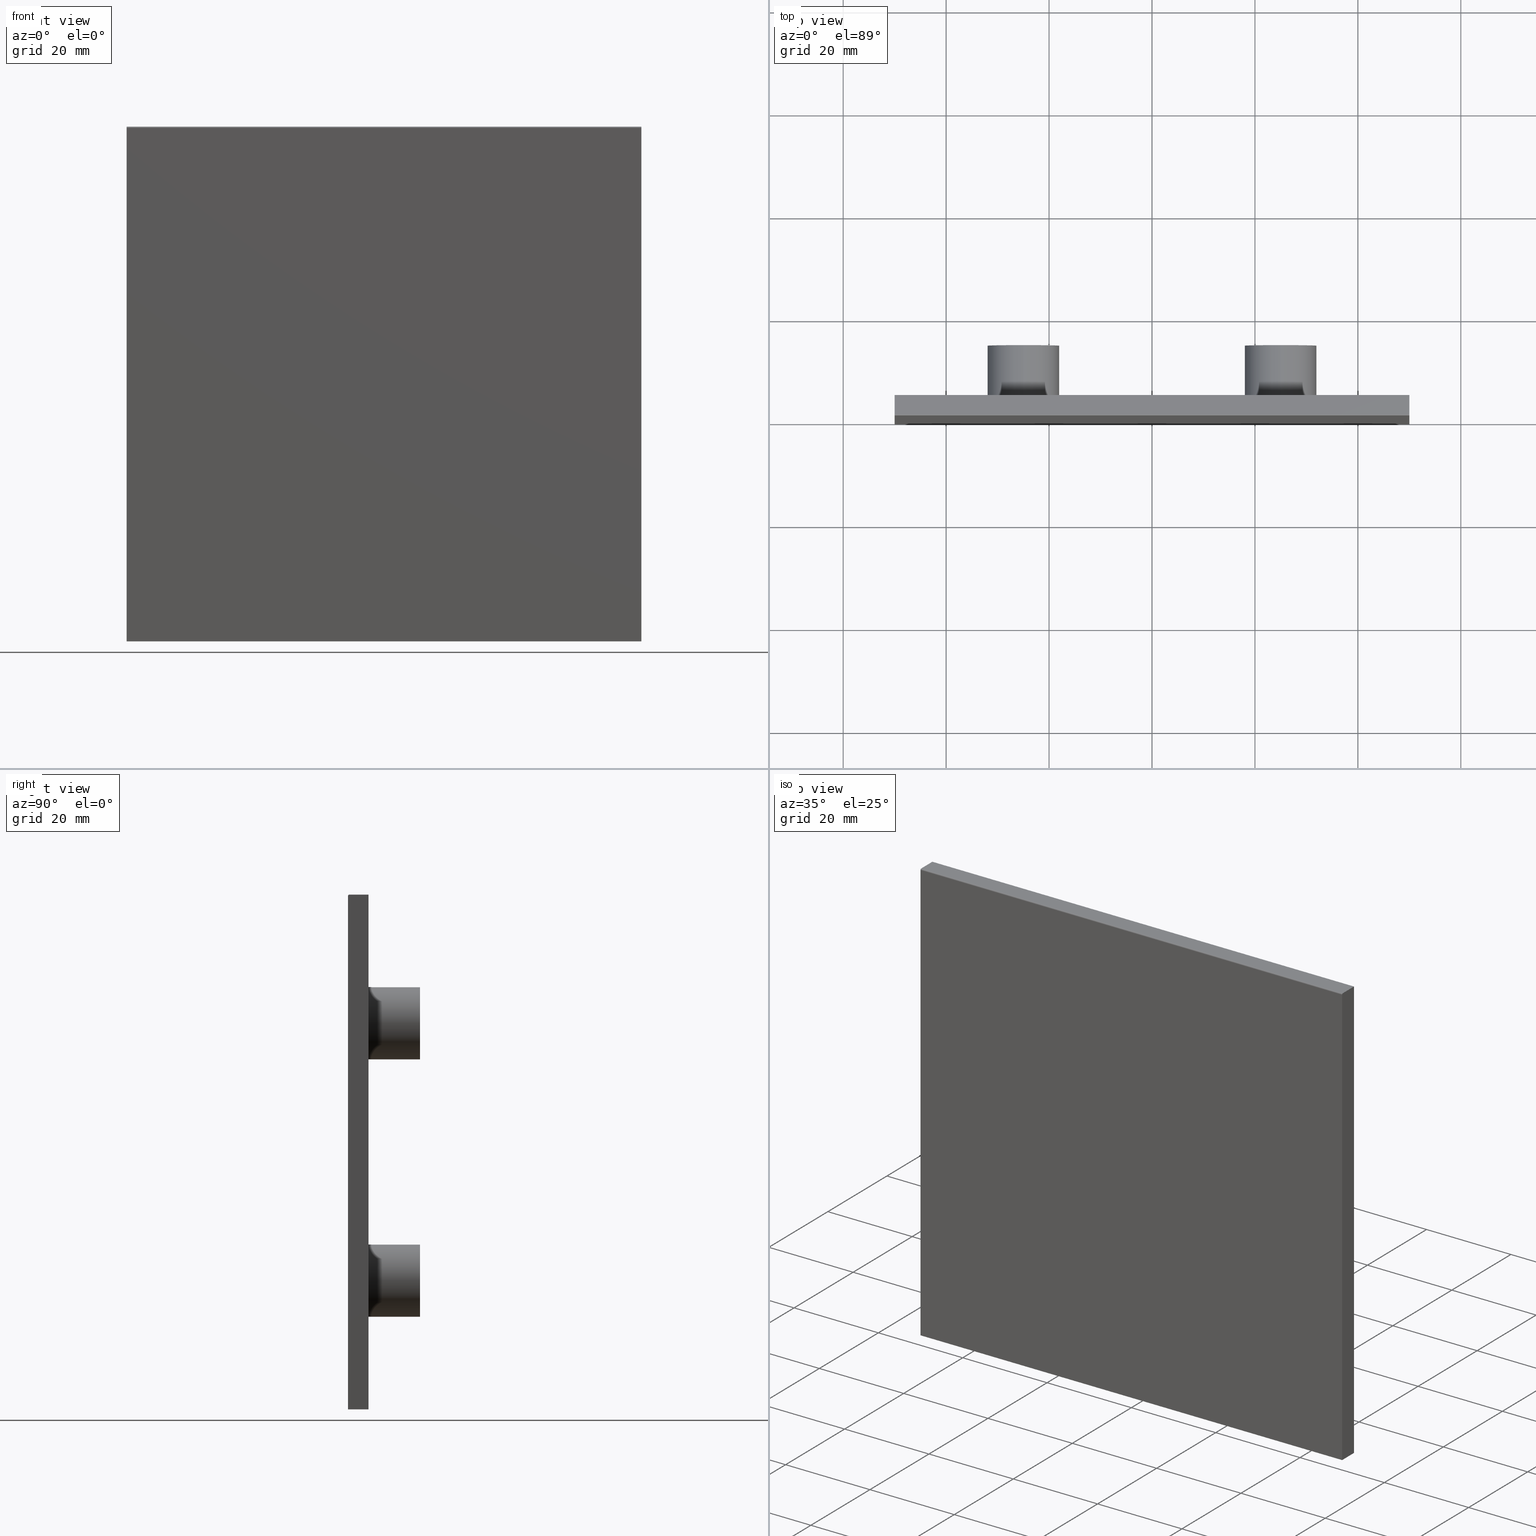
[diagram: canonical four-view strip — front | top / right | iso, engineering-drawing reading convention]
A machine part, canonical four-view strip (front | top / right | iso — engineering-drawing reading convention). The complete STEP part file that produces these views, byte-faithful:
ISO-10303-21;
HEADER;
FILE_DESCRIPTION (( 'STEP AP203' ),
    '1' );
FILE_NAME ('A40-50.STEP',
    '2018-03-22T14:11:48',
    ( 'User2' ),
    ( '' ),
    'SwSTEP 2.0',
    'SolidWorks 2007',
    '' );
FILE_SCHEMA (( 'CONFIG_CONTROL_DESIGN' ));
ENDSEC;

DATA;
#1 = EDGE_CURVE ( 'NONE', #77, #112, #622, .T. ) ;
#2 = EDGE_CURVE ( 'NONE', #72, #114, #624, .T. ) ;
#3 = EDGE_CURVE ( 'NONE', #97, #80, #626, .T. ) ;
#4 = EDGE_CURVE ( 'NONE', #97, #72, #625, .T. ) ;
#5 = EDGE_CURVE ( 'NONE', #80, #114, #628, .T. ) ;
#6 = EDGE_CURVE ( 'NONE', #89, #102, #630, .T. ) ;
#7 = DESIGN_CONTEXT ( 'detailed design', #459, 'design' ) ;
#8 = PRODUCT_DEFINITION_SHAPE ( 'NONE', 'NONE',  #592 ) ;
#9 = DIRECTION ( 'NONE',  ( -0.0000000000000000000, -1.000000000000000000, -0.0000000000000000000 ) ) ;
#10 = PLANE ( 'NONE',  #537 ) ;
#11 = CARTESIAN_POINT ( 'NONE',  ( 24.99999999999999300, 14.00000000000000000, 25.00000000000003600 ) ) ;
#12 = DIRECTION ( 'NONE',  ( 0.0000000000000000000, 1.000000000000000000, 0.0000000000000000000 ) ) ;
#13 = DIRECTION ( 'NONE',  ( 0.0000000000000000000, 0.0000000000000000000, -1.000000000000000000 ) ) ;
#14 = DIRECTION ( 'NONE',  ( -1.387778780781445200E-016, 0.0000000000000000000, -1.000000000000000000 ) ) ;
#15 = CARTESIAN_POINT ( 'NONE',  ( -50.00000000000000700, 4.000000000000000000, -50.00000000000000000 ) ) ;
#16 = DIRECTION ( 'NONE',  ( 0.0000000000000000000, 0.0000000000000000000, 1.000000000000000000 ) ) ;
#17 = DIRECTION ( 'NONE',  ( 0.0000000000000000000, 0.0000000000000000000, -1.000000000000000000 ) ) ;
#18 = DIRECTION ( 'NONE',  ( 0.0000000000000000000, 0.0000000000000000000, -1.000000000000000000 ) ) ;
#19 = DIRECTION ( 'NONE',  ( -0.0000000000000000000, -1.000000000000000000, -0.0000000000000000000 ) ) ;
#20 = PLANE ( 'NONE',  #540 ) ;
#21 = DIRECTION ( 'NONE',  ( 0.0000000000000000000, -0.0000000000000000000, 1.000000000000000000 ) ) ;
#22 = CARTESIAN_POINT ( 'NONE',  ( -50.00000000000000700, 4.000000000000000000, -50.00000000000000000 ) ) ;
#23 = DIRECTION ( 'NONE',  ( 0.0000000000000000000, 0.0000000000000000000, -1.000000000000000000 ) ) ;
#24 = PLANE ( 'NONE',  #551 ) ;
#25 = CARTESIAN_POINT ( 'NONE',  ( -25.00000000000001400, 14.00000000000000000, -25.00000000000000000 ) ) ;
#26 = CARTESIAN_POINT ( 'NONE',  ( -25.00000000000001400, 14.00000000000000000, 25.00000000000003600 ) ) ;
#27 = DIRECTION ( 'NONE',  ( 0.0000000000000000000, 0.0000000000000000000, -1.000000000000000000 ) ) ;
#28 = PLANE ( 'NONE',  #548 ) ;
#29 = PLANE ( 'NONE',  #536 ) ;
#30 = DIRECTION ( 'NONE',  ( 1.000000000000000000, 0.0000000000000000000, -0.0000000000000000000 ) ) ;
#31 = DIRECTION ( 'NONE',  ( -0.0000000000000000000, -1.000000000000000000, -0.0000000000000000000 ) ) ;
#32 = CARTESIAN_POINT ( 'NONE',  ( 24.99999999999999300, 14.00000000000000000, 25.00000000000003600 ) ) ;
#33 = DIRECTION ( 'NONE',  ( -0.0000000000000000000, -1.000000000000000000, -0.0000000000000000000 ) ) ;
#34 = DIRECTION ( 'NONE',  ( -0.0000000000000000000, -1.000000000000000000, -0.0000000000000000000 ) ) ;
#35 = DIRECTION ( 'NONE',  ( 0.0000000000000000000, 0.0000000000000000000, -1.000000000000000000 ) ) ;
#36 = PLANE ( 'NONE',  #550 ) ;
#37 = CARTESIAN_POINT ( 'NONE',  ( 24.99999999999999300, 14.00000000000000000, -25.00000000000000000 ) ) ;
#38 = DIRECTION ( 'NONE',  ( 0.0000000000000000000, 1.000000000000000000, 0.0000000000000000000 ) ) ;
#39 = CARTESIAN_POINT ( 'NONE',  ( 24.99999999999999300, 14.00000000000000000, -25.00000000000000000 ) ) ;
#40 = DIRECTION ( 'NONE',  ( -5.551115123125783700E-016, 0.0000000000000000000, -1.000000000000000000 ) ) ;
#41 = PLANE ( 'NONE',  #552 ) ;
#42 = DIRECTION ( 'NONE',  ( 0.0000000000000000000, 0.0000000000000000000, -1.000000000000000000 ) ) ;
#43 = CARTESIAN_POINT ( 'NONE',  ( 24.99999999999999300, 14.00000000000000000, 25.00000000000003600 ) ) ;
#44 = DIRECTION ( 'NONE',  ( 1.000000000000000000, 0.0000000000000000000, -1.387778780781445200E-016 ) ) ;
#45 = DIRECTION ( 'NONE',  ( -0.0000000000000000000, -1.000000000000000000, -0.0000000000000000000 ) ) ;
#46 = DIRECTION ( 'NONE',  ( -1.000000000000000000, 0.0000000000000000000, 5.551115123125783700E-016 ) ) ;
#47 = DIRECTION ( 'NONE',  ( -0.0000000000000000000, -1.000000000000000000, -0.0000000000000000000 ) ) ;
#48 = DIRECTION ( 'NONE',  ( 0.0000000000000000000, 0.0000000000000000000, -1.000000000000000000 ) ) ;
#49 = CARTESIAN_POINT ( 'NONE',  ( -50.00000000000000700, 4.000000000000000000, -50.00000000000000000 ) ) ;
#50 = DIRECTION ( 'NONE',  ( 0.0000000000000000000, -0.0000000000000000000, 1.000000000000000000 ) ) ;
#51 = CARTESIAN_POINT ( 'NONE',  ( -50.00000000000000700, 4.000000000000000000, -50.00000000000000000 ) ) ;
#52 = CARTESIAN_POINT ( 'NONE',  ( -50.00000000000000700, 4.000000000000000000, -50.00000000000000000 ) ) ;
#53 = CARTESIAN_POINT ( 'NONE',  ( 49.99999999999999300, 4.000000000000000000, -50.00000000000000000 ) ) ;
#54 = DIRECTION ( 'NONE',  ( 0.0000000000000000000, 0.0000000000000000000, -1.000000000000000000 ) ) ;
#55 = DIRECTION ( 'NONE',  ( 0.0000000000000000000, 1.000000000000000000, 0.0000000000000000000 ) ) ;
#56 = DIRECTION ( 'NONE',  ( -0.0000000000000000000, -1.000000000000000000, -0.0000000000000000000 ) ) ;
#57 = CARTESIAN_POINT ( 'NONE',  ( -25.00000000000001400, 14.00000000000000000, 25.00000000000003600 ) ) ;
#58 = DIRECTION ( 'NONE',  ( 0.0000000000000000000, -0.0000000000000000000, 1.000000000000000000 ) ) ;
#59 = DIRECTION ( 'NONE',  ( -1.000000000000000000, 0.0000000000000000000, 0.0000000000000000000 ) ) ;
#60 = CARTESIAN_POINT ( 'NONE',  ( 24.99999999999999300, 14.00000000000000000, 25.00000000000003600 ) ) ;
#61 = CARTESIAN_POINT ( 'NONE',  ( 24.99999999999999300, 14.00000000000000000, 25.00000000000003600 ) ) ;
#62 = CARTESIAN_POINT ( 'NONE',  ( -49.99999999999999300, 4.000000000000000000, 50.00000000000003600 ) ) ;
#63 = PLANE ( 'NONE',  #549 ) ;
#64 = DIRECTION ( 'NONE',  ( 0.0000000000000000000, 1.000000000000000000, 0.0000000000000000000 ) ) ;
#65 = DIRECTION ( 'NONE',  ( -0.0000000000000000000, -1.000000000000000000, -0.0000000000000000000 ) ) ;
#66 = DIRECTION ( 'NONE',  ( 0.0000000000000000000, 0.0000000000000000000, -1.000000000000000000 ) ) ;
#67 = DIRECTION ( 'NONE',  ( 0.0000000000000000000, 0.0000000000000000000, 1.000000000000000000 ) ) ;
#68 = DIRECTION ( 'NONE',  ( -0.0000000000000000000, -1.000000000000000000, -0.0000000000000000000 ) ) ;
#69 = DIRECTION ( 'NONE',  ( 0.0000000000000000000, -0.0000000000000000000, 1.000000000000000000 ) ) ;
#70 = VERTEX_POINT ( 'NONE', #143 ) ;
#71 = VERTEX_POINT ( 'NONE', #189 ) ;
#72 = VERTEX_POINT ( 'NONE', #200 ) ;
#73 = VERTEX_POINT ( 'NONE', #181 ) ;
#74 = VERTEX_POINT ( 'NONE', #202 ) ;
#75 = CARTESIAN_POINT ( 'NONE',  ( -25.00000000000001400, 4.000000000000000000, -25.00000000000000000 ) ) ;
#76 = VERTEX_POINT ( 'NONE', #182 ) ;
#77 = VERTEX_POINT ( 'NONE', #188 ) ;
#78 = VERTEX_POINT ( 'NONE', #185 ) ;
#79 = VERTEX_POINT ( 'NONE', #183 ) ;
#80 = VERTEX_POINT ( 'NONE', #177 ) ;
#81 = VERTEX_POINT ( 'NONE', #165 ) ;
#82 = VERTEX_POINT ( 'NONE', #190 ) ;
#83 = VERTEX_POINT ( 'NONE', #194 ) ;
#84 = VERTEX_POINT ( 'NONE', #153 ) ;
#85 = VERTEX_POINT ( 'NONE', #145 ) ;
#86 = VERTEX_POINT ( 'NONE', #193 ) ;
#87 = VERTEX_POINT ( 'NONE', #191 ) ;
#88 = VERTEX_POINT ( 'NONE', #199 ) ;
#89 = VERTEX_POINT ( 'NONE', #186 ) ;
#90 = VERTEX_POINT ( 'NONE', #184 ) ;
#91 = VERTEX_POINT ( 'NONE', #137 ) ;
#92 = VERTEX_POINT ( 'NONE', #171 ) ;
#93 = VERTEX_POINT ( 'NONE', #155 ) ;
#94 = VERTEX_POINT ( 'NONE', #197 ) ;
#95 = VERTEX_POINT ( 'NONE', #156 ) ;
#96 = VERTEX_POINT ( 'NONE', #179 ) ;
#97 = VERTEX_POINT ( 'NONE', #148 ) ;
#98 = VERTEX_POINT ( 'NONE', #135 ) ;
#99 = VERTEX_POINT ( 'NONE', #164 ) ;
#100 = VERTEX_POINT ( 'NONE', #173 ) ;
#101 = VERTEX_POINT ( 'NONE', #144 ) ;
#102 = VERTEX_POINT ( 'NONE', #161 ) ;
#103 = DIRECTION ( 'NONE',  ( 1.000000000000000000, 0.0000000000000000000, -5.551115123125783700E-016 ) ) ;
#104 = VERTEX_POINT ( 'NONE', #159 ) ;
#105 = VERTEX_POINT ( 'NONE', #162 ) ;
#106 = VERTEX_POINT ( 'NONE', #160 ) ;
#107 = VERTEX_POINT ( 'NONE', #201 ) ;
#108 = VERTEX_POINT ( 'NONE', #167 ) ;
#109 = CARTESIAN_POINT ( 'NONE',  ( -49.99999999999999300, 0.2500000000000002200, 50.00000000000003600 ) ) ;
#110 = VERTEX_POINT ( 'NONE', #140 ) ;
#111 = VERTEX_POINT ( 'NONE', #147 ) ;
#112 = VERTEX_POINT ( 'NONE', #150 ) ;
#113 = VERTEX_POINT ( 'NONE', #174 ) ;
#114 = VERTEX_POINT ( 'NONE', #157 ) ;
#115 = DIRECTION ( 'NONE',  ( 0.0000000000000000000, 0.0000000000000000000, 1.000000000000000000 ) ) ;
#116 = DIRECTION ( 'NONE',  ( 0.0000000000000000000, 1.000000000000000000, 0.0000000000000000000 ) ) ;
#117 = CARTESIAN_POINT ( 'NONE',  ( -50.00000000000000700, 4.000000000000000000, -50.00000000000000000 ) ) ;
#118 = CARTESIAN_POINT ( 'NONE',  ( -25.00000000000001400, 4.000000000000000000, 25.00000000000003600 ) ) ;
#119 = DIRECTION ( 'NONE',  ( 0.0000000000000000000, 1.000000000000000000, 0.0000000000000000000 ) ) ;
#120 = DIRECTION ( 'NONE',  ( 0.0000000000000000000, 0.0000000000000000000, 1.000000000000000000 ) ) ;
#121 = DIRECTION ( 'NONE',  ( 0.0000000000000000000, 0.0000000000000000000, 1.000000000000000000 ) ) ;
#122 = DIRECTION ( 'NONE',  ( 0.0000000000000000000, 0.0000000000000000000, 1.000000000000000000 ) ) ;
#123 = DIRECTION ( 'NONE',  ( 0.0000000000000000000, 0.0000000000000000000, 1.000000000000000000 ) ) ;
#124 = DIRECTION ( 'NONE',  ( -0.0000000000000000000, -1.000000000000000000, -0.0000000000000000000 ) ) ;
#125 = CARTESIAN_POINT ( 'NONE',  ( -25.00000000000001400, 14.00000000000000000, 25.00000000000003600 ) ) ;
#126 = DIRECTION ( 'NONE',  ( -0.0000000000000000000, -1.000000000000000000, -0.0000000000000000000 ) ) ;
#127 = CARTESIAN_POINT ( 'NONE',  ( 24.99999999999999300, 4.000000000000000000, 25.00000000000003600 ) ) ;
#128 = DIRECTION ( 'NONE',  ( 0.0000000000000000000, 1.000000000000000000, 0.0000000000000000000 ) ) ;
#129 = DIRECTION ( 'NONE',  ( 1.387778780781445200E-016, 0.0000000000000000000, 1.000000000000000000 ) ) ;
#130 = CARTESIAN_POINT ( 'NONE',  ( 24.99999999999999300, 4.000000000000000000, -25.00000000000000000 ) ) ;
#131 = CARTESIAN_POINT ( 'NONE',  ( -50.00000000000000700, 0.0000000000000000000, -50.00000000000000000 ) ) ;
#132 = ORIENTED_EDGE ( 'NONE', *, *, #891, .T. ) ;
#133 = ORIENTED_EDGE ( 'NONE', *, *, #516, .T. ) ;
#134 = ORIENTED_EDGE ( 'NONE', *, *, #516, .F. ) ;
#135 = CARTESIAN_POINT ( 'NONE',  ( 49.99999999999999300, 0.0000000000000000000, -50.00000000000000000 ) ) ;
#136 = PLANE ( 'NONE',  #528 ) ;
#137 = CARTESIAN_POINT ( 'NONE',  ( 24.99999999999999300, 14.00000000000000000, 18.00000000000003600 ) ) ;
#138 = CARTESIAN_POINT ( 'NONE',  ( -50.00000000000000700, 4.000000000000000000, -50.00000000000000000 ) ) ;
#139 = DIRECTION ( 'NONE',  ( 0.0000000000000000000, 0.0000000000000000000, 1.000000000000000000 ) ) ;
#140 = CARTESIAN_POINT ( 'NONE',  ( -25.00000000000001400, 4.000000000000000000, 18.00000000000003600 ) ) ;
#141 = CARTESIAN_POINT ( 'NONE',  ( -50.00000000000000700, 4.000000000000000000, -50.00000000000000000 ) ) ;
#142 = DIRECTION ( 'NONE',  ( 0.0000000000000000000, 1.000000000000000000, 0.0000000000000000000 ) ) ;
#143 = CARTESIAN_POINT ( 'NONE',  ( -25.00000000000001400, 14.00000000000000000, 18.00000000000003600 ) ) ;
#144 = CARTESIAN_POINT ( 'NONE',  ( 49.99999999999999300, 4.000000000000000000, 49.99999999999997900 ) ) ;
#145 = CARTESIAN_POINT ( 'NONE',  ( 24.99999999999999300, 4.000000000000000000, -32.00000000000000000 ) ) ;
#146 = CARTESIAN_POINT ( 'NONE',  ( -25.00000000000001400, 14.00000000000000000, -25.00000000000000000 ) ) ;
#147 = CARTESIAN_POINT ( 'NONE',  ( 49.99999999999999300, 0.0000000000000000000, 49.74999999999997200 ) ) ;
#148 = CARTESIAN_POINT ( 'NONE',  ( -25.00000000000001400, 14.00000000000000000, -18.00000000000000400 ) ) ;
#149 = DIRECTION ( 'NONE',  ( -0.0000000000000000000, -1.000000000000000000, -0.0000000000000000000 ) ) ;
#150 = CARTESIAN_POINT ( 'NONE',  ( 49.99999999999999300, 0.2500000000000002200, 49.99999999999997900 ) ) ;
#151 = DIRECTION ( 'NONE',  ( 1.387778780781445200E-016, 0.0000000000000000000, 1.000000000000000000 ) ) ;
#152 = CARTESIAN_POINT ( 'NONE',  ( 24.99999999999999300, 14.00000000000000000, -25.00000000000000000 ) ) ;
#153 = CARTESIAN_POINT ( 'NONE',  ( 24.99999999999999300, 4.000000000000000000, 18.00000000000003600 ) ) ;
#154 = DIRECTION ( 'NONE',  ( 0.0000000000000000000, 1.000000000000000000, 0.0000000000000000000 ) ) ;
#155 = CARTESIAN_POINT ( 'NONE',  ( 24.99999999999999300, 4.000000000000000000, -31.00000000000000000 ) ) ;
#156 = CARTESIAN_POINT ( 'NONE',  ( 24.99999999999999300, 4.000000000000000000, 31.00000000000003600 ) ) ;
#157 = CARTESIAN_POINT ( 'NONE',  ( -25.00000000000001400, 4.000000000000000000, -32.00000000000000000 ) ) ;
#158 = PLANE ( 'NONE',  #529 ) ;
#159 = CARTESIAN_POINT ( 'NONE',  ( -50.00000000000000700, 0.0000000000000000000, -50.00000000000000000 ) ) ;
#160 = CARTESIAN_POINT ( 'NONE',  ( -25.00000000000001400, 14.00000000000000000, 31.00000000000003600 ) ) ;
#161 = CARTESIAN_POINT ( 'NONE',  ( -49.99999999999999300, 4.000000000000000000, 50.00000000000003600 ) ) ;
#162 = CARTESIAN_POINT ( 'NONE',  ( 24.99999999999999300, 14.00000000000000000, -19.00000000000000400 ) ) ;
#163 = CARTESIAN_POINT ( 'NONE',  ( 24.99999999999999300, 14.00000000000000000, -25.00000000000000000 ) ) ;
#164 = CARTESIAN_POINT ( 'NONE',  ( 24.99999999999999300, 14.00000000000000000, -18.00000000000000400 ) ) ;
#165 = CARTESIAN_POINT ( 'NONE',  ( -25.00000000000001400, 4.000000000000000000, 31.00000000000003600 ) ) ;
#166 = CARTESIAN_POINT ( 'NONE',  ( -25.00000000000001400, 14.00000000000000000, -32.00000000000000000 ) ) ;
#167 = CARTESIAN_POINT ( 'NONE',  ( 24.99999999999999300, 4.000000000000000000, -18.00000000000000400 ) ) ;
#168 = DIRECTION ( 'NONE',  ( 0.0000000000000000000, -0.0000000000000000000, 1.000000000000000000 ) ) ;
#169 = DIRECTION ( 'NONE',  ( 0.0000000000000000000, 0.0000000000000000000, 1.000000000000000000 ) ) ;
#170 = DIRECTION ( 'NONE',  ( 0.0000000000000000000, 0.0000000000000000000, -1.000000000000000000 ) ) ;
#171 = CARTESIAN_POINT ( 'NONE',  ( -25.00000000000001400, 4.000000000000000000, -31.00000000000000000 ) ) ;
#172 = CARTESIAN_POINT ( 'NONE',  ( -25.00000000000001400, 14.00000000000000000, -25.00000000000000000 ) ) ;
#173 = CARTESIAN_POINT ( 'NONE',  ( 49.99999999999999300, 4.000000000000000000, -50.00000000000000000 ) ) ;
#174 = CARTESIAN_POINT ( 'NONE',  ( -25.00000000000001400, 14.00000000000000000, 32.00000000000003600 ) ) ;
#175 = CARTESIAN_POINT ( 'NONE',  ( 49.99999999999999300, 4.000000000000000000, 49.99999999999997900 ) ) ;
#176 = DIRECTION ( 'NONE',  ( -0.0000000000000000000, -1.000000000000000000, -0.0000000000000000000 ) ) ;
#177 = CARTESIAN_POINT ( 'NONE',  ( -25.00000000000001400, 14.00000000000000000, -32.00000000000000000 ) ) ;
#178 = DIRECTION ( 'NONE',  ( 0.0000000000000000000, -0.0000000000000000000, 1.000000000000000000 ) ) ;
#179 = CARTESIAN_POINT ( 'NONE',  ( -25.00000000000001400, 14.00000000000000000, 19.00000000000003900 ) ) ;
#180 = DIRECTION ( 'NONE',  ( 0.0000000000000000000, 1.000000000000000000, 0.0000000000000000000 ) ) ;
#181 = CARTESIAN_POINT ( 'NONE',  ( -25.00000000000001400, 4.000000000000000000, 19.00000000000003900 ) ) ;
#182 = CARTESIAN_POINT ( 'NONE',  ( -25.00000000000001400, 14.00000000000000000, -19.00000000000000400 ) ) ;
#183 = CARTESIAN_POINT ( 'NONE',  ( 24.99999999999999300, 14.00000000000000000, -32.00000000000000000 ) ) ;
#184 = CARTESIAN_POINT ( 'NONE',  ( 24.99999999999999300, 4.000000000000000000, 32.00000000000003600 ) ) ;
#185 = CARTESIAN_POINT ( 'NONE',  ( 24.99999999999999300, 4.000000000000000000, -19.00000000000000400 ) ) ;
#186 = CARTESIAN_POINT ( 'NONE',  ( -50.00000000000000700, 4.000000000000000000, -50.00000000000000000 ) ) ;
#187 = DIRECTION ( 'NONE',  ( 0.0000000000000000000, 0.0000000000000000000, -1.000000000000000000 ) ) ;
#188 = CARTESIAN_POINT ( 'NONE',  ( -49.99999999999999300, 0.2500000000000002200, 50.00000000000003600 ) ) ;
#189 = CARTESIAN_POINT ( 'NONE',  ( 24.99999999999999300, 14.00000000000000000, 32.00000000000003600 ) ) ;
#190 = CARTESIAN_POINT ( 'NONE',  ( -25.00000000000001400, 14.00000000000000000, -31.00000000000000000 ) ) ;
#191 = CARTESIAN_POINT ( 'NONE',  ( 24.99999999999999300, 4.000000000000000000, 19.00000000000003900 ) ) ;
#192 = DIRECTION ( 'NONE',  ( -0.0000000000000000000, -1.000000000000000000, -0.0000000000000000000 ) ) ;
#193 = CARTESIAN_POINT ( 'NONE',  ( 24.99999999999999300, 14.00000000000000000, 19.00000000000003900 ) ) ;
#194 = CARTESIAN_POINT ( 'NONE',  ( -49.99999999999999300, 0.0000000000000000000, 49.75000000000002800 ) ) ;
#195 = CARTESIAN_POINT ( 'NONE',  ( -25.00000000000001400, 14.00000000000000000, -18.00000000000000400 ) ) ;
#196 = DIRECTION ( 'NONE',  ( 0.0000000000000000000, 1.000000000000000000, 0.0000000000000000000 ) ) ;
#197 = CARTESIAN_POINT ( 'NONE',  ( 24.99999999999999300, 14.00000000000000000, 31.00000000000003600 ) ) ;
#198 = DIRECTION ( 'NONE',  ( -0.0000000000000000000, -1.000000000000000000, -0.0000000000000000000 ) ) ;
#199 = CARTESIAN_POINT ( 'NONE',  ( -25.00000000000001400, 4.000000000000000000, -19.00000000000000400 ) ) ;
#200 = CARTESIAN_POINT ( 'NONE',  ( -25.00000000000001400, 4.000000000000000000, -18.00000000000000400 ) ) ;
#201 = CARTESIAN_POINT ( 'NONE',  ( -25.00000000000001400, 4.000000000000000000, 32.00000000000003600 ) ) ;
#202 = CARTESIAN_POINT ( 'NONE',  ( 24.99999999999999300, 14.00000000000000000, -31.00000000000000000 ) ) ;
#203 = DIRECTION ( 'NONE',  ( -0.0000000000000000000, -1.000000000000000000, -0.0000000000000000000 ) ) ;
#204 = ORIENTED_EDGE ( 'NONE', *, *, #896, .T. ) ;
#205 = ORIENTED_EDGE ( 'NONE', *, *, #6, .T. ) ;
#206 = ORIENTED_EDGE ( 'NONE', *, *, #899, .F. ) ;
#207 = ORIENTED_EDGE ( 'NONE', *, *, #1, .T. ) ;
#208 = ORIENTED_EDGE ( 'NONE', *, *, #523, .T. ) ;
#209 = ORIENTED_EDGE ( 'NONE', *, *, #5, .F. ) ;
#210 = ORIENTED_EDGE ( 'NONE', *, *, #889, .F. ) ;
#211 = ORIENTED_EDGE ( 'NONE', *, *, #847, .T. ) ;
#212 = ORIENTED_EDGE ( 'NONE', *, *, #847, .F. ) ;
#213 = ORIENTED_EDGE ( 'NONE', *, *, #520, .F. ) ;
#214 = ORIENTED_EDGE ( 'NONE', *, *, #887, .T. ) ;
#215 = ORIENTED_EDGE ( 'NONE', *, *, #840, .T. ) ;
#216 = ORIENTED_EDGE ( 'NONE', *, *, #521, .T. ) ;
#217 = ORIENTED_EDGE ( 'NONE', *, *, #827, .T. ) ;
#218 = ORIENTED_EDGE ( 'NONE', *, *, #512, .T. ) ;
#219 = ORIENTED_EDGE ( 'NONE', *, *, #511, .F. ) ;
#220 = ORIENTED_EDGE ( 'NONE', *, *, #1, .F. ) ;
#221 = ORIENTED_EDGE ( 'NONE', *, *, #3, .T. ) ;
#222 = ORIENTED_EDGE ( 'NONE', *, *, #513, .T. ) ;
#223 = ORIENTED_EDGE ( 'NONE', *, *, #835, .F. ) ;
#224 = ORIENTED_EDGE ( 'NONE', *, *, #509, .F. ) ;
#225 = ORIENTED_EDGE ( 'NONE', *, *, #843, .F. ) ;
#226 = ORIENTED_EDGE ( 'NONE', *, *, #833, .F. ) ;
#227 = ORIENTED_EDGE ( 'NONE', *, *, #512, .F. ) ;
#228 = ORIENTED_EDGE ( 'NONE', *, *, #475, .F. ) ;
#229 = ORIENTED_EDGE ( 'NONE', *, *, #835, .T. ) ;
#230 = ORIENTED_EDGE ( 'NONE', *, *, #843, .T. ) ;
#231 = ORIENTED_EDGE ( 'NONE', *, *, #475, .T. ) ;
#232 = ORIENTED_EDGE ( 'NONE', *, *, #4, .F. ) ;
#233 = ORIENTED_EDGE ( 'NONE', *, *, #911, .F. ) ;
#234 = ORIENTED_EDGE ( 'NONE', *, *, #894, .T. ) ;
#235 = ORIENTED_EDGE ( 'NONE', *, *, #841, .T. ) ;
#236 = ORIENTED_EDGE ( 'NONE', *, *, #510, .F. ) ;
#237 = ORIENTED_EDGE ( 'NONE', *, *, #518, .T. ) ;
#238 = ORIENTED_EDGE ( 'NONE', *, *, #910, .F. ) ;
#239 = ORIENTED_EDGE ( 'NONE', *, *, #511, .T. ) ;
#240 = ORIENTED_EDGE ( 'NONE', *, *, #6, .F. ) ;
#241 = ORIENTED_EDGE ( 'NONE', *, *, #842, .T. ) ;
#242 = ORIENTED_EDGE ( 'NONE', *, *, #522, .F. ) ;
#243 = ORIENTED_EDGE ( 'NONE', *, *, #836, .F. ) ;
#244 = CLOSED_SHELL ( 'NONE', ( #492, #491, #497, #495, #496, #494, #493, #476, #498, #499, #500, #501, #502, #503, #504, #505, #506, #507, #478, #479, #480, #481, #482, #483, #484, #485, #486, #487, #488, #489, #490 ) ) ;
#245 = ORIENTED_EDGE ( 'NONE', *, *, #909, .T. ) ;
#246 = ORIENTED_EDGE ( 'NONE', *, *, #522, .T. ) ;
#247 = ORIENTED_EDGE ( 'NONE', *, *, #5, .T. ) ;
#248 = ORIENTED_EDGE ( 'NONE', *, *, #902, .F. ) ;
#249 = ORIENTED_EDGE ( 'NONE', *, *, #518, .F. ) ;
#250 = ORIENTED_EDGE ( 'NONE', *, *, #897, .T. ) ;
#251 = ORIENTED_EDGE ( 'NONE', *, *, #3, .F. ) ;
#252 = ORIENTED_EDGE ( 'NONE', *, *, #4, .T. ) ;
#253 = ORIENTED_EDGE ( 'NONE', *, *, #2, .T. ) ;
#254 = ORIENTED_EDGE ( 'NONE', *, *, #836, .T. ) ;
#255 = ORIENTED_EDGE ( 'NONE', *, *, #834, .F. ) ;
#256 = ORIENTED_EDGE ( 'NONE', *, *, #519, .F. ) ;
#257 = ORIENTED_EDGE ( 'NONE', *, *, #897, .F. ) ;
#258 = ORIENTED_EDGE ( 'NONE', *, *, #517, .F. ) ;
#259 = ORIENTED_EDGE ( 'NONE', *, *, #509, .T. ) ;
#260 = ORIENTED_EDGE ( 'NONE', *, *, #840, .F. ) ;
#261 = ORIENTED_EDGE ( 'NONE', *, *, #2, .F. ) ;
#262 = ORIENTED_EDGE ( 'NONE', *, *, #832, .F. ) ;
#263 = ORIENTED_EDGE ( 'NONE', *, *, #898, .F. ) ;
#264 = ORIENTED_EDGE ( 'NONE', *, *, #842, .F. ) ;
#265 = ORIENTED_EDGE ( 'NONE', *, *, #912, .T. ) ;
#266 = ORIENTED_EDGE ( 'NONE', *, *, #888, .F. ) ;
#267 = ORIENTED_EDGE ( 'NONE', *, *, #903, .F. ) ;
#268 = ORIENTED_EDGE ( 'NONE', *, *, #833, .T. ) ;
#269 = ORIENTED_EDGE ( 'NONE', *, *, #831, .F. ) ;
#270 = ORIENTED_EDGE ( 'NONE', *, *, #901, .F. ) ;
#271 = ORIENTED_EDGE ( 'NONE', *, *, #523, .F. ) ;
#272 = ORIENTED_EDGE ( 'NONE', *, *, #519, .T. ) ;
#273 = ORIENTED_EDGE ( 'NONE', *, *, #827, .F. ) ;
#274 = ORIENTED_EDGE ( 'NONE', *, *, #832, .T. ) ;
#275 = ORIENTED_EDGE ( 'NONE', *, *, #906, .F. ) ;
#276 = ORIENTED_EDGE ( 'NONE', *, *, #908, .F. ) ;
#277 = ORIENTED_EDGE ( 'NONE', *, *, #513, .F. ) ;
#278 = ORIENTED_EDGE ( 'NONE', *, *, #890, .F. ) ;
#279 = ORIENTED_EDGE ( 'NONE', *, *, #521, .F. ) ;
#280 = ORIENTED_EDGE ( 'NONE', *, *, #517, .T. ) ;
#281 = CARTESIAN_POINT ( 'NONE',  ( -50.00000000000000700, 0.0000000000000000000, -50.00000000000000000 ) ) ;
#282 = DIRECTION ( 'NONE',  ( -0.0000000000000000000, -0.0000000000000000000, -1.000000000000000000 ) ) ;
#283 = CARTESIAN_POINT ( 'NONE',  ( 49.99999999999999300, 4.000000000000000000, -50.00000000000000000 ) ) ;
#284 = CARTESIAN_POINT ( 'NONE',  ( -25.00000000000001400, 4.000000000000000000, -25.00000000000000000 ) ) ;
#285 = CARTESIAN_POINT ( 'NONE',  ( -50.00000000000000700, 0.0000000000000000000, -50.00000000000000000 ) ) ;
#286 = DIRECTION ( 'NONE',  ( 0.0000000000000000000, 0.0000000000000000000, 1.000000000000000000 ) ) ;
#287 = DIRECTION ( 'NONE',  ( 0.0000000000000000000, 1.000000000000000000, 0.0000000000000000000 ) ) ;
#288 = DIRECTION ( 'NONE',  ( 0.0000000000000000000, 1.000000000000000000, 0.0000000000000000000 ) ) ;
#289 = CARTESIAN_POINT ( 'NONE',  ( -49.99999999999999300, 0.2500000000000002200, 49.75000000000003600 ) ) ;
#290 = DIRECTION ( 'NONE',  ( 0.0000000000000000000, 0.0000000000000000000, 1.000000000000000000 ) ) ;
#291 = PLANE ( 'NONE',  #553 ) ;
#292 = DIRECTION ( 'NONE',  ( 0.0000000000000000000, 1.000000000000000000, 0.0000000000000000000 ) ) ;
#293 = DIRECTION ( 'NONE',  ( 0.0000000000000000000, 0.0000000000000000000, 1.000000000000000000 ) ) ;
#294 = DIRECTION ( 'NONE',  ( 0.0000000000000000000, 0.0000000000000000000, 1.000000000000000000 ) ) ;
#295 = DIRECTION ( 'NONE',  ( 0.0000000000000000000, 0.0000000000000000000, 1.000000000000000000 ) ) ;
#296 = CARTESIAN_POINT ( 'NONE',  ( 24.99999999999999300, 14.00000000000000000, -25.00000000000000000 ) ) ;
#297 = CARTESIAN_POINT ( 'NONE',  ( 24.99999999999999300, 14.00000000000000000, 25.00000000000003600 ) ) ;
#298 = DIRECTION ( 'NONE',  ( 0.0000000000000000000, 1.000000000000000000, 0.0000000000000000000 ) ) ;
#299 = PLANE ( 'NONE',  #555 ) ;
#300 = DIRECTION ( 'NONE',  ( -1.000000000000000000, -0.0000000000000000000, 5.551115123125783700E-016 ) ) ;
#301 = CARTESIAN_POINT ( 'NONE',  ( -25.00000000000001400, 14.00000000000000000, -25.00000000000000000 ) ) ;
#302 = DIRECTION ( 'NONE',  ( 0.0000000000000000000, 1.000000000000000000, 0.0000000000000000000 ) ) ;
#303 = CARTESIAN_POINT ( 'NONE',  ( -25.00000000000001400, 14.00000000000000000, -25.00000000000000000 ) ) ;
#304 = DIRECTION ( 'NONE',  ( 0.0000000000000000000, 1.000000000000000000, 0.0000000000000000000 ) ) ;
#305 = DIRECTION ( 'NONE',  ( 1.000000000000000000, 0.0000000000000000000, -5.551115123125783700E-016 ) ) ;
#306 = DIRECTION ( 'NONE',  ( 0.0000000000000000000, 0.0000000000000000000, -1.000000000000000000 ) ) ;
#307 = DIRECTION ( 'NONE',  ( -1.000000000000000000, -0.0000000000000000000, -0.0000000000000000000 ) ) ;
#308 = CARTESIAN_POINT ( 'NONE',  ( -25.00000000000001400, 14.00000000000000000, -25.00000000000000000 ) ) ;
#309 = DIRECTION ( 'NONE',  ( 0.0000000000000000000, -0.0000000000000000000, 1.000000000000000000 ) ) ;
#310 = DIRECTION ( 'NONE',  ( 0.0000000000000000000, 0.0000000000000000000, 1.000000000000000000 ) ) ;
#311 = DIRECTION ( 'NONE',  ( -0.0000000000000000000, -1.000000000000000000, -0.0000000000000000000 ) ) ;
#312 = DIRECTION ( 'NONE',  ( 0.0000000000000000000, 1.000000000000000000, 0.0000000000000000000 ) ) ;
#313 = CARTESIAN_POINT ( 'NONE',  ( 24.99999999999999300, 14.00000000000000000, -25.00000000000000000 ) ) ;
#314 = CARTESIAN_POINT ( 'NONE',  ( -49.99999999999995700, 0.0000000000000000000, 49.75000000000002800 ) ) ;
#315 = CARTESIAN_POINT ( 'NONE',  ( 49.99999999999999300, 0.0000000000000000000, -50.00000000000000000 ) ) ;
#316 = DIRECTION ( 'NONE',  ( 0.0000000000000000000, -0.0000000000000000000, 1.000000000000000000 ) ) ;
#317 = DIRECTION ( 'NONE',  ( -0.0000000000000000000, -1.000000000000000000, -0.0000000000000000000 ) ) ;
#318 = DIRECTION ( 'NONE',  ( 0.0000000000000000000, 1.000000000000000000, 0.0000000000000000000 ) ) ;
#319 = DIRECTION ( 'NONE',  ( 0.0000000000000000000, 0.0000000000000000000, 1.000000000000000000 ) ) ;
#320 = CARTESIAN_POINT ( 'NONE',  ( 24.99999999999999300, 4.000000000000000000, -25.00000000000000000 ) ) ;
#321 = DIRECTION ( 'NONE',  ( 0.0000000000000000000, 1.000000000000000000, 0.0000000000000000000 ) ) ;
#322 = CARTESIAN_POINT ( 'NONE',  ( -25.00000000000001400, 14.00000000000000000, 25.00000000000003600 ) ) ;
#323 = CARTESIAN_POINT ( 'NONE',  ( -25.00000000000001400, 4.000000000000000000, 25.00000000000003600 ) ) ;
#324 = DIRECTION ( 'NONE',  ( -0.0000000000000000000, -1.000000000000000000, -0.0000000000000000000 ) ) ;
#325 = CARTESIAN_POINT ( 'NONE',  ( 24.99999999999999300, 14.00000000000000000, 25.00000000000003600 ) ) ;
#326 = DIRECTION ( 'NONE',  ( 0.0000000000000000000, 0.0000000000000000000, 1.000000000000000000 ) ) ;
#327 = DIRECTION ( 'NONE',  ( 0.0000000000000000000, 0.0000000000000000000, 1.000000000000000000 ) ) ;
#328 = DIRECTION ( 'NONE',  ( -0.0000000000000000000, -1.000000000000000000, -0.0000000000000000000 ) ) ;
#329 = CARTESIAN_POINT ( 'NONE',  ( -25.00000000000001400, 14.00000000000000000, -25.00000000000000000 ) ) ;
#330 = DIRECTION ( 'NONE',  ( -0.0000000000000000000, -1.000000000000000000, -0.0000000000000000000 ) ) ;
#331 = DIRECTION ( 'NONE',  ( 0.0000000000000000000, 0.0000000000000000000, -1.000000000000000000 ) ) ;
#332 = CARTESIAN_POINT ( 'NONE',  ( -25.00000000000001400, 14.00000000000000000, -25.00000000000000000 ) ) ;
#333 = DIRECTION ( 'NONE',  ( -0.0000000000000000000, -1.000000000000000000, -0.0000000000000000000 ) ) ;
#334 = DIRECTION ( 'NONE',  ( 0.0000000000000000000, 0.0000000000000000000, -1.000000000000000000 ) ) ;
#335 = ORIENTED_EDGE ( 'NONE', *, *, #908, .T. ) ;
#336 = EDGE_LOOP ( 'NONE', ( #397, #398, #399, #396 ) ) ;
#337 = ORIENTED_EDGE ( 'NONE', *, *, #887, .F. ) ;
#338 = ORIENTED_EDGE ( 'NONE', *, *, #889, .T. ) ;
#339 = ORIENTED_EDGE ( 'NONE', *, *, #886, .T. ) ;
#340 = ORIENTED_EDGE ( 'NONE', *, *, #890, .T. ) ;
#341 = ORIENTED_EDGE ( 'NONE', *, *, #910, .T. ) ;
#342 = ORIENTED_EDGE ( 'NONE', *, *, #901, .T. ) ;
#343 = ORIENTED_EDGE ( 'NONE', *, *, #906, .T. ) ;
#344 = ORIENTED_EDGE ( 'NONE', *, *, #885, .F. ) ;
#345 = ORIENTED_EDGE ( 'NONE', *, *, #899, .T. ) ;
#346 = ORIENTED_EDGE ( 'NONE', *, *, #912, .F. ) ;
#347 = EDGE_LOOP ( 'NONE', ( #210, #271, #825, #824 ) ) ;
#348 = ORIENTED_EDGE ( 'NONE', *, *, #894, .F. ) ;
#349 = ORIENTED_EDGE ( 'NONE', *, *, #898, .T. ) ;
#350 = ORIENTED_EDGE ( 'NONE', *, *, #891, .F. ) ;
#351 = ORIENTED_EDGE ( 'NONE', *, *, #905, .T. ) ;
#352 = ORIENTED_EDGE ( 'NONE', *, *, #909, .F. ) ;
#353 = ORIENTED_EDGE ( 'NONE', *, *, #911, .T. ) ;
#354 = ORIENTED_EDGE ( 'NONE', *, *, #896, .F. ) ;
#355 = ORIENTED_EDGE ( 'NONE', *, *, #888, .T. ) ;
#356 = ORIENTED_EDGE ( 'NONE', *, *, #903, .T. ) ;
#357 = EDGE_LOOP ( 'NONE', ( #276, #279 ) ) ;
#358 = EDGE_LOOP ( 'NONE', ( #263, #213 ) ) ;
#359 = EDGE_LOOP ( 'NONE', ( #337, #338, #355, #344 ) ) ;
#360 = EDGE_LOOP ( 'NONE', ( #614, #615, #616, #617 ) ) ;
#361 = EDGE_LOOP ( 'NONE', ( #618, #619 ) ) ;
#362 = EDGE_LOOP ( 'NONE', ( #610, #611, #612, #613 ) ) ;
#363 = EDGE_LOOP ( 'NONE', ( #242, #238 ) ) ;
#364 = EDGE_LOOP ( 'NONE', ( #231, #211, #259, #236, #264 ) ) ;
#365 = EDGE_LOOP ( 'NONE', ( #340, #342, #343, #354 ) ) ;
#366 = EDGE_LOOP ( 'NONE', ( #206, #249, #265, #274 ) ) ;
#367 = EDGE_LOOP ( 'NONE', ( #395, #394, #250, #248 ) ) ;
#368 = EDGE_LOOP ( 'NONE', ( #134, #838 ) ) ;
#369 = EDGE_LOOP ( 'NONE', ( #822, #837 ) ) ;
#370 = EDGE_LOOP ( 'NONE', ( #826, #823, #132, #133 ) ) ;
#371 = EDGE_LOOP ( 'NONE', ( #251, #252, #253, #209 ) ) ;
#372 = EDGE_LOOP ( 'NONE', ( #608, #609 ) ) ;
#373 = EDGE_LOOP ( 'NONE', ( #224, #218, #226, #219 ) ) ;
#374 = EDGE_LOOP ( 'NONE', ( #349, #351, #339, #350 ) ) ;
#375 = EDGE_LOOP ( 'NONE', ( #258, #275 ) ) ;
#376 = EDGE_LOOP ( 'NONE', ( #208, #214 ) ) ;
#377 = EDGE_LOOP ( 'NONE', ( #205, #230, #241, #235 ) ) ;
#378 = EDGE_LOOP ( 'NONE', ( #222, #221 ) ) ;
#379 = EDGE_LOOP ( 'NONE', ( #278, #256 ) ) ;
#380 = EDGE_LOOP ( 'NONE', ( #268, #229, #243, #240, #217 ) ) ;
#381 = EDGE_LOOP ( 'NONE', ( #269, #266 ) ) ;
#382 = EDGE_LOOP ( 'NONE', ( #239, #273, #620, #621 ) ) ;
#383 = EDGE_LOOP ( 'NONE', ( #254, #207, #228, #225 ) ) ;
#384 = EDGE_LOOP ( 'NONE', ( #260, #261 ) ) ;
#385 = EDGE_LOOP ( 'NONE', ( #270, #272, #204, #280 ) ) ;
#386 = EDGE_LOOP ( 'NONE', ( #262, #267 ) ) ;
#387 = EDGE_LOOP ( 'NONE', ( #237, #234 ) ) ;
#388 = EDGE_LOOP ( 'NONE', ( #232, #277, #247, #215 ) ) ;
#389 = EDGE_LOOP ( 'NONE', ( #223, #227, #212, #220 ) ) ;
#390 = EDGE_LOOP ( 'NONE', ( #335, #353, #341, #352 ) ) ;
#391 = EDGE_LOOP ( 'NONE', ( #255, #257 ) ) ;
#392 = EDGE_LOOP ( 'NONE', ( #233, #216, #245, #246 ) ) ;
#393 = EDGE_LOOP ( 'NONE', ( #348, #345, #356, #346 ) ) ;
#394 = ORIENTED_EDGE ( 'NONE', *, *, #900, .T. ) ;
#395 = ORIENTED_EDGE ( 'NONE', *, *, #907, .F. ) ;
#396 = ORIENTED_EDGE ( 'NONE', *, *, #904, .F. ) ;
#397 = ORIENTED_EDGE ( 'NONE', *, *, #895, .T. ) ;
#398 = ORIENTED_EDGE ( 'NONE', *, *, #892, .T. ) ;
#399 = ORIENTED_EDGE ( 'NONE', *, *, #893, .T. ) ;
#400 = DIRECTION ( 'NONE',  ( -0.0000000000000000000, -1.000000000000000000, -0.0000000000000000000 ) ) ;
#401 = DIRECTION ( 'NONE',  ( 0.0000000000000000000, 0.0000000000000000000, 1.000000000000000000 ) ) ;
#402 = CARTESIAN_POINT ( 'NONE',  ( 24.99999999999999300, 14.00000000000000000, -25.00000000000000000 ) ) ;
#403 = DIRECTION ( 'NONE',  ( 0.0000000000000000000, 1.000000000000000000, 0.0000000000000000000 ) ) ;
#404 = DIRECTION ( 'NONE',  ( 0.0000000000000000000, 0.0000000000000000000, 1.000000000000000000 ) ) ;
#405 = CARTESIAN_POINT ( 'NONE',  ( 24.99999999999999300, 14.00000000000000000, 25.00000000000003600 ) ) ;
#406 = DIRECTION ( 'NONE',  ( 0.0000000000000000000, 1.000000000000000000, 0.0000000000000000000 ) ) ;
#407 = DIRECTION ( 'NONE',  ( 0.0000000000000000000, 0.0000000000000000000, 1.000000000000000000 ) ) ;
#408 = CARTESIAN_POINT ( 'NONE',  ( 24.99999999999999300, 14.00000000000000000, -31.00000000000000000 ) ) ;
#409 = DIRECTION ( 'NONE',  ( -0.0000000000000000000, -1.000000000000000000, -0.0000000000000000000 ) ) ;
#410 = CARTESIAN_POINT ( 'NONE',  ( 24.99999999999999300, 4.000000000000000000, 25.00000000000003600 ) ) ;
#411 = DIRECTION ( 'NONE',  ( 0.0000000000000000000, 1.000000000000000000, 0.0000000000000000000 ) ) ;
#412 = DIRECTION ( 'NONE',  ( 0.0000000000000000000, 0.0000000000000000000, 1.000000000000000000 ) ) ;
#413 = CARTESIAN_POINT ( 'NONE',  ( -25.00000000000001400, 14.00000000000000000, 25.00000000000003600 ) ) ;
#414 = DIRECTION ( 'NONE',  ( 0.0000000000000000000, 1.000000000000000000, 0.0000000000000000000 ) ) ;
#415 = DIRECTION ( 'NONE',  ( 0.0000000000000000000, 0.0000000000000000000, 1.000000000000000000 ) ) ;
#416 = CARTESIAN_POINT ( 'NONE',  ( 24.99999999999999300, 14.00000000000000000, -18.00000000000000400 ) ) ;
#417 = DIRECTION ( 'NONE',  ( -0.0000000000000000000, -1.000000000000000000, -0.0000000000000000000 ) ) ;
#418 = CARTESIAN_POINT ( 'NONE',  ( 24.99999999999999300, 14.00000000000000000, 32.00000000000003600 ) ) ;
#419 = DIRECTION ( 'NONE',  ( -0.0000000000000000000, -1.000000000000000000, -0.0000000000000000000 ) ) ;
#420 = CARTESIAN_POINT ( 'NONE',  ( 24.99999999999999300, 14.00000000000000000, -19.00000000000000400 ) ) ;
#421 = DIRECTION ( 'NONE',  ( -0.0000000000000000000, -1.000000000000000000, -0.0000000000000000000 ) ) ;
#422 = CARTESIAN_POINT ( 'NONE',  ( 24.99999999999999300, 14.00000000000000000, 18.00000000000003600 ) ) ;
#423 = DIRECTION ( 'NONE',  ( -0.0000000000000000000, -1.000000000000000000, -0.0000000000000000000 ) ) ;
#424 = CARTESIAN_POINT ( 'NONE',  ( 24.99999999999999300, 4.000000000000000000, -25.00000000000000000 ) ) ;
#425 = DIRECTION ( 'NONE',  ( 0.0000000000000000000, 1.000000000000000000, 0.0000000000000000000 ) ) ;
#426 = DIRECTION ( 'NONE',  ( 0.0000000000000000000, 0.0000000000000000000, 1.000000000000000000 ) ) ;
#427 = CARTESIAN_POINT ( 'NONE',  ( 24.99999999999999300, 14.00000000000000000, 19.00000000000003900 ) ) ;
#428 = DIRECTION ( 'NONE',  ( -0.0000000000000000000, -1.000000000000000000, -0.0000000000000000000 ) ) ;
#429 = CARTESIAN_POINT ( 'NONE',  ( -25.00000000000001400, 14.00000000000000000, 31.00000000000003600 ) ) ;
#430 = DIRECTION ( 'NONE',  ( -0.0000000000000000000, -1.000000000000000000, -0.0000000000000000000 ) ) ;
#431 = CARTESIAN_POINT ( 'NONE',  ( 24.99999999999999300, 4.000000000000000000, -25.00000000000000000 ) ) ;
#432 = DIRECTION ( 'NONE',  ( -0.0000000000000000000, -1.000000000000000000, -0.0000000000000000000 ) ) ;
#433 = DIRECTION ( 'NONE',  ( 0.0000000000000000000, 0.0000000000000000000, 1.000000000000000000 ) ) ;
#434 = CARTESIAN_POINT ( 'NONE',  ( 24.99999999999999300, 14.00000000000000000, 25.00000000000003600 ) ) ;
#435 = DIRECTION ( 'NONE',  ( 0.0000000000000000000, 1.000000000000000000, 0.0000000000000000000 ) ) ;
#436 = DIRECTION ( 'NONE',  ( 0.0000000000000000000, 0.0000000000000000000, 1.000000000000000000 ) ) ;
#437 = CARTESIAN_POINT ( 'NONE',  ( -25.00000000000001400, 14.00000000000000000, -25.00000000000000000 ) ) ;
#438 = DIRECTION ( 'NONE',  ( 0.0000000000000000000, 1.000000000000000000, 0.0000000000000000000 ) ) ;
#439 = DIRECTION ( 'NONE',  ( 0.0000000000000000000, 0.0000000000000000000, 1.000000000000000000 ) ) ;
#440 = CARTESIAN_POINT ( 'NONE',  ( -25.00000000000001400, 14.00000000000000000, -31.00000000000000000 ) ) ;
#441 = DIRECTION ( 'NONE',  ( -0.0000000000000000000, -1.000000000000000000, -0.0000000000000000000 ) ) ;
#442 = CARTESIAN_POINT ( 'NONE',  ( -25.00000000000001400, 4.000000000000000000, -25.00000000000000000 ) ) ;
#443 = DIRECTION ( 'NONE',  ( -0.0000000000000000000, -1.000000000000000000, -0.0000000000000000000 ) ) ;
#444 = DIRECTION ( 'NONE',  ( 0.0000000000000000000, 0.0000000000000000000, 1.000000000000000000 ) ) ;
#445 = CARTESIAN_POINT ( 'NONE',  ( -25.00000000000001400, 14.00000000000000000, -19.00000000000000400 ) ) ;
#446 = DIRECTION ( 'NONE',  ( -0.0000000000000000000, -1.000000000000000000, -0.0000000000000000000 ) ) ;
#447 = CARTESIAN_POINT ( 'NONE',  ( 24.99999999999999300, 14.00000000000000000, -32.00000000000000000 ) ) ;
#448 = DIRECTION ( 'NONE',  ( -0.0000000000000000000, -1.000000000000000000, -0.0000000000000000000 ) ) ;
#449 =( LENGTH_UNIT ( ) NAMED_UNIT ( * ) SI_UNIT ( .MILLI., .METRE. ) );
#450 =( NAMED_UNIT ( * ) PLANE_ANGLE_UNIT ( ) SI_UNIT ( $, .RADIAN. ) );
#451 =( NAMED_UNIT ( * ) SI_UNIT ( $, .STERADIAN. ) SOLID_ANGLE_UNIT ( ) );
#452 = CARTESIAN_POINT ( 'NONE',  ( 0.0000000000000000000, 0.0000000000000000000, 0.0000000000000000000 ) ) ;
#453 = DIRECTION ( 'NONE',  ( 0.0000000000000000000, 0.0000000000000000000, 1.000000000000000000 ) ) ;
#454 = DIRECTION ( 'NONE',  ( 1.000000000000000000, 0.0000000000000000000, 0.0000000000000000000 ) ) ;
#455 = APPLICATION_CONTEXT ( 'configuration controlled 3d designs of mechanical parts and assemblies' ) ;
#456 = APPLICATION_PROTOCOL_DEFINITION ( 'international standard', 'config_control_design', 1994, #455 ) ;
#457 = MECHANICAL_CONTEXT ( 'NONE', #455, 'mechanical' ) ;
#458 = PERSON_AND_ORGANIZATION_ROLE ( 'design_owner' ) ;
#459 = APPLICATION_CONTEXT ( 'configuration controlled 3d designs of mechanical parts and assemblies' ) ;
#460 = APPLICATION_PROTOCOL_DEFINITION ( 'international standard', 'config_control_design', 1994, #459 ) ;
#461 = APPROVAL_STATUS ( 'not_yet_approved' ) ;
#462 = APPROVAL_ROLE ( '' ) ;
#463 = PERSON_AND_ORGANIZATION_ROLE ( 'creator' ) ;
#464 = DATE_TIME_ROLE ( 'creation_date' ) ;
#465 = APPROVAL_STATUS ( 'not_yet_approved' ) ;
#466 = APPROVAL_ROLE ( '' ) ;
#467 = PERSON_AND_ORGANIZATION_ROLE ( 'creator' ) ;
#468 = PERSON_AND_ORGANIZATION_ROLE ( 'design_supplier' ) ;
#469 = SECURITY_CLASSIFICATION_LEVEL ( 'unclassified' ) ;
#470 = PERSON_AND_ORGANIZATION_ROLE ( 'classification_officer' ) ;
#471 = DATE_TIME_ROLE ( 'classification_date' ) ;
#472 = APPROVAL_STATUS ( 'not_yet_approved' ) ;
#473 = APPROVAL_ROLE ( '' ) ;
#474 = UNCERTAINTY_MEASURE_WITH_UNIT (LENGTH_MEASURE( 1.000000000000000100E-005 ), #449, 'distance_accuracy_value', 'NONE');
#475 = EDGE_CURVE ( 'NONE', #101, #112, #632, .T. ) ;
#476 = ADVANCED_FACE ( 'NONE', ( #634 ), #635, .T. ) ;
#477 = MANIFOLD_SOLID_BREP ( 'NONE', #244 ) ;
#478 = ADVANCED_FACE ( 'NONE', ( #636 ), #136, .T. ) ;
#479 = ADVANCED_FACE ( 'NONE', ( #637, #638 ), #158, .T. ) ;
#480 = ADVANCED_FACE ( 'NONE', ( #639 ), #640, .T. ) ;
#481 = ADVANCED_FACE ( 'NONE', ( #641 ), #642, .F. ) ;
#482 = ADVANCED_FACE ( 'NONE', ( #643 ), #819, .T. ) ;
#483 = ADVANCED_FACE ( 'NONE', ( #644, #645 ), #810, .T. ) ;
#484 = ADVANCED_FACE ( 'NONE', ( #646 ), #647, .T. ) ;
#485 = ADVANCED_FACE ( 'NONE', ( #648 ), #649, .F. ) ;
#486 = ADVANCED_FACE ( 'NONE', ( #650 ), #29, .T. ) ;
#487 = ADVANCED_FACE ( 'NONE', ( #651, #652 ), #10, .T. ) ;
#488 = ADVANCED_FACE ( 'NONE', ( #653 ), #654, .T. ) ;
#489 = ADVANCED_FACE ( 'NONE', ( #655 ), #656, .F. ) ;
#490 = ADVANCED_FACE ( 'NONE', ( #657 ), #20, .T. ) ;
#491 = ADVANCED_FACE ( 'NONE', ( #658 ), #659, .T. ) ;
#492 = ADVANCED_FACE ( 'NONE', ( #660 ), #661, .F. ) ;
#493 = ADVANCED_FACE ( 'NONE', ( #662 ), #663, .F. ) ;
#494 = ADVANCED_FACE ( 'NONE', ( #664 ), #665, .T. ) ;
#495 = ADVANCED_FACE ( 'NONE', ( #666 ), #667, .T. ) ;
#496 = ADVANCED_FACE ( 'NONE', ( #668 ), #669, .F. ) ;
#497 = ADVANCED_FACE ( 'NONE', ( #670 ), #671, .F. ) ;
#498 = ADVANCED_FACE ( 'NONE', ( #672, #673, #674, #675, #676 ), #28, .T. ) ;
#499 = ADVANCED_FACE ( 'NONE', ( #677 ), #63, .F. ) ;
#500 = ADVANCED_FACE ( 'NONE', ( #678 ), #36, .F. ) ;
#501 = ADVANCED_FACE ( 'NONE', ( #679 ), #24, .F. ) ;
#502 = ADVANCED_FACE ( 'NONE', ( #680 ), #41, .F. ) ;
#503 = ADVANCED_FACE ( 'NONE', ( #681 ), #291, .F. ) ;
#504 = ADVANCED_FACE ( 'NONE', ( #682 ), #683, .T. ) ;
#505 = ADVANCED_FACE ( 'NONE', ( #684, #685 ), #299, .T. ) ;
#506 = ADVANCED_FACE ( 'NONE', ( #686 ), #687, .T. ) ;
#507 = ADVANCED_FACE ( 'NONE', ( #688 ), #689, .F. ) ;
#508 = ADVANCED_BREP_SHAPE_REPRESENTATION ( 'A40-50', ( #477, #590 ), #772 ) ;
#509 = EDGE_CURVE ( 'NONE', #111, #98, #690, .T. ) ;
#510 = EDGE_CURVE ( 'NONE', #100, #98, #692, .T. ) ;
#511 = EDGE_CURVE ( 'NONE', #98, #104, #694, .T. ) ;
#512 = EDGE_CURVE ( 'NONE', #111, #83, #696, .T. ) ;
#513 = EDGE_CURVE ( 'NONE', #80, #97, #698, .T. ) ;
#514 = EDGE_CURVE ( 'NONE', #91, #71, #699, .T. ) ;
#515 = EDGE_CURVE ( 'NONE', #94, #86, #700, .T. ) ;
#516 = EDGE_CURVE ( 'NONE', #73, #81, #701, .T. ) ;
#517 = EDGE_CURVE ( 'NONE', #93, #78, #702, .T. ) ;
#518 = EDGE_CURVE ( 'NONE', #79, #99, #703, .T. ) ;
#519 = EDGE_CURVE ( 'NONE', #105, #74, #704, .T. ) ;
#520 = EDGE_CURVE ( 'NONE', #106, #96, #705, .T. ) ;
#521 = EDGE_CURVE ( 'NONE', #76, #82, #706, .T. ) ;
#522 = EDGE_CURVE ( 'NONE', #92, #88, #707, .T. ) ;
#523 = EDGE_CURVE ( 'NONE', #70, #113, #708, .T. ) ;
#524 = EDGE_CURVE ( 'NONE', #87, #95, #710, .T. ) ;
#525 = AXIS2_PLACEMENT_3D ( 'NONE', #75, #154, #139 ) ;
#526 = AXIS2_PLACEMENT_3D ( 'NONE', #146, #180, #169 ) ;
#527 = AXIS2_PLACEMENT_3D ( 'NONE', #172, #198, #187 ) ;
#528 = AXIS2_PLACEMENT_3D ( 'NONE', #138, #142, #178 ) ;
#529 = AXIS2_PLACEMENT_3D ( 'NONE', #152, #196, #168 ) ;
#530 = AXIS2_PLACEMENT_3D ( 'NONE', #163, #203, #170 ) ;
#531 = AXIS2_PLACEMENT_3D ( 'NONE', #828, #829, #830 ) ;
#532 = AXIS2_PLACEMENT_3D ( 'NONE', #821, #820, #816 ) ;
#533 = AXIS2_PLACEMENT_3D ( 'NONE', #813, #817, #818 ) ;
#534 = AXIS2_PLACEMENT_3D ( 'NONE', #811, #814, #812 ) ;
#535 = AXIS2_PLACEMENT_3D ( 'NONE', #815, #19, #42 ) ;
#536 = AXIS2_PLACEMENT_3D ( 'NONE', #51, #12, #69 ) ;
#537 = AXIS2_PLACEMENT_3D ( 'NONE', #11, #38, #21 ) ;
#538 = AXIS2_PLACEMENT_3D ( 'NONE', #60, #56, #35 ) ;
#539 = AXIS2_PLACEMENT_3D ( 'NONE', #43, #34, #23 ) ;
#540 = AXIS2_PLACEMENT_3D ( 'NONE', #49, #64, #50 ) ;
#541 = AXIS2_PLACEMENT_3D ( 'NONE', #32, #33, #66 ) ;
#542 = AXIS2_PLACEMENT_3D ( 'NONE', #61, #45, #13 ) ;
#543 = AXIS2_PLACEMENT_3D ( 'NONE', #25, #68, #17 ) ;
#544 = AXIS2_PLACEMENT_3D ( 'NONE', #39, #31, #48 ) ;
#545 = AXIS2_PLACEMENT_3D ( 'NONE', #26, #47, #27 ) ;
#546 = AXIS2_PLACEMENT_3D ( 'NONE', #37, #65, #54 ) ;
#547 = AXIS2_PLACEMENT_3D ( 'NONE', #57, #9, #18 ) ;
#548 = AXIS2_PLACEMENT_3D ( 'NONE', #22, #55, #58 ) ;
#549 = AXIS2_PLACEMENT_3D ( 'NONE', #15, #44, #14 ) ;
#550 = AXIS2_PLACEMENT_3D ( 'NONE', #62, #40, #46 ) ;
#551 = AXIS2_PLACEMENT_3D ( 'NONE', #53, #59, #67 ) ;
#552 = AXIS2_PLACEMENT_3D ( 'NONE', #52, #16, #30 ) ;
#553 = AXIS2_PLACEMENT_3D ( 'NONE', #281, #302, #309 ) ;
#554 = AXIS2_PLACEMENT_3D ( 'NONE', #289, #305, #306 ) ;
#555 = AXIS2_PLACEMENT_3D ( 'NONE', #308, #288, #316 ) ;
#556 = AXIS2_PLACEMENT_3D ( 'NONE', #329, #330, #331 ) ;
#557 = AXIS2_PLACEMENT_3D ( 'NONE', #332, #333, #334 ) ;
#558 = AXIS2_PLACEMENT_3D ( 'NONE', #301, #287, #295 ) ;
#559 = AXIS2_PLACEMENT_3D ( 'NONE', #325, #318, #294 ) ;
#560 = AXIS2_PLACEMENT_3D ( 'NONE', #297, #292, #310 ) ;
#561 = AXIS2_PLACEMENT_3D ( 'NONE', #323, #317, #319 ) ;
#562 = AXIS2_PLACEMENT_3D ( 'NONE', #320, #324, #326 ) ;
#563 = AXIS2_PLACEMENT_3D ( 'NONE', #313, #298, #286 ) ;
#564 = AXIS2_PLACEMENT_3D ( 'NONE', #296, #312, #290 ) ;
#565 = AXIS2_PLACEMENT_3D ( 'NONE', #322, #304, #293 ) ;
#566 = AXIS2_PLACEMENT_3D ( 'NONE', #303, #321, #327 ) ;
#567 = AXIS2_PLACEMENT_3D ( 'NONE', #284, #328, #121 ) ;
#568 = AXIS2_PLACEMENT_3D ( 'NONE', #125, #119, #122 ) ;
#569 = AXIS2_PLACEMENT_3D ( 'NONE', #127, #124, #123 ) ;
#570 = AXIS2_PLACEMENT_3D ( 'NONE', #118, #116, #115 ) ;
#571 = AXIS2_PLACEMENT_3D ( 'NONE', #130, #128, #120 ) ;
#572 = AXIS2_PLACEMENT_3D ( 'NONE', #844, #845, #846 ) ;
#573 = AXIS2_PLACEMENT_3D ( 'NONE', #874, #866, #872 ) ;
#574 = AXIS2_PLACEMENT_3D ( 'NONE', #869, #857, #848 ) ;
#575 = AXIS2_PLACEMENT_3D ( 'NONE', #849, #850, #871 ) ;
#576 = AXIS2_PLACEMENT_3D ( 'NONE', #882, #852, #862 ) ;
#577 = AXIS2_PLACEMENT_3D ( 'NONE', #856, #877, #853 ) ;
#578 = AXIS2_PLACEMENT_3D ( 'NONE', #879, #861, #854 ) ;
#579 = AXIS2_PLACEMENT_3D ( 'NONE', #884, #870, #863 ) ;
#580 = AXIS2_PLACEMENT_3D ( 'NONE', #839, #400, #401 ) ;
#581 = AXIS2_PLACEMENT_3D ( 'NONE', #402, #403, #404 ) ;
#582 = AXIS2_PLACEMENT_3D ( 'NONE', #405, #406, #407 ) ;
#583 = AXIS2_PLACEMENT_3D ( 'NONE', #410, #411, #412 ) ;
#584 = AXIS2_PLACEMENT_3D ( 'NONE', #413, #414, #415 ) ;
#585 = AXIS2_PLACEMENT_3D ( 'NONE', #424, #425, #426 ) ;
#586 = AXIS2_PLACEMENT_3D ( 'NONE', #431, #432, #433 ) ;
#587 = AXIS2_PLACEMENT_3D ( 'NONE', #434, #435, #436 ) ;
#588 = AXIS2_PLACEMENT_3D ( 'NONE', #437, #438, #439 ) ;
#589 = AXIS2_PLACEMENT_3D ( 'NONE', #442, #443, #444 ) ;
#590 = AXIS2_PLACEMENT_3D ( 'NONE', #452, #453, #454 ) ;
#591 = CC_DESIGN_PERSON_AND_ORGANIZATION_ASSIGNMENT ( #775, #458, ( #740 ) ) ;
#592 = PRODUCT_DEFINITION ( 'UNKNOWN', '', #597, #7 ) ;
#593 = APPROVAL ( #461, 'UNSPECIFIED' ) ;
#594 = CC_DESIGN_APPROVAL ( #593, ( #592 ) ) ;
#595 = CC_DESIGN_PERSON_AND_ORGANIZATION_ASSIGNMENT ( #783, #463, ( #592 ) ) ;
#596 = CC_DESIGN_DATE_AND_TIME_ASSIGNMENT ( #787, #464, ( #592 ) ) ;
#597 = PRODUCT_DEFINITION_FORMATION_WITH_SPECIFIED_SOURCE ( 'ANY', '', #740, .NOT_KNOWN. ) ;
#598 = APPROVAL ( #465, 'UNSPECIFIED' ) ;
#599 = CC_DESIGN_APPROVAL ( #598, ( #597 ) ) ;
#600 = CC_DESIGN_PERSON_AND_ORGANIZATION_ASSIGNMENT ( #795, #467, ( #597 ) ) ;
#601 = CC_DESIGN_PERSON_AND_ORGANIZATION_ASSIGNMENT ( #796, #468, ( #597 ) ) ;
#602 = CC_DESIGN_PERSON_AND_ORGANIZATION_ASSIGNMENT ( #798, #470, ( #797 ) ) ;
#603 = CC_DESIGN_DATE_AND_TIME_ASSIGNMENT ( #802, #471, ( #797 ) ) ;
#604 = APPROVAL ( #472, 'UNSPECIFIED' ) ;
#605 = CC_DESIGN_APPROVAL ( #604, ( #797 ) ) ;
#606 = CC_DESIGN_SECURITY_CLASSIFICATION ( #797, ( #597 ) ) ;
#607 = PRODUCT_RELATED_PRODUCT_CATEGORY ( 'detail', '', ( #740 ) ) ;
#608 = ORIENTED_EDGE ( 'NONE', *, *, #895, .F. ) ;
#609 = ORIENTED_EDGE ( 'NONE', *, *, #515, .F. ) ;
#610 = ORIENTED_EDGE ( 'NONE', *, *, #900, .F. ) ;
#611 = ORIENTED_EDGE ( 'NONE', *, *, #514, .F. ) ;
#612 = ORIENTED_EDGE ( 'NONE', *, *, #902, .T. ) ;
#613 = ORIENTED_EDGE ( 'NONE', *, *, #834, .T. ) ;
#614 = ORIENTED_EDGE ( 'NONE', *, *, #892, .F. ) ;
#615 = ORIENTED_EDGE ( 'NONE', *, *, #515, .T. ) ;
#616 = ORIENTED_EDGE ( 'NONE', *, *, #904, .T. ) ;
#617 = ORIENTED_EDGE ( 'NONE', *, *, #524, .T. ) ;
#618 = ORIENTED_EDGE ( 'NONE', *, *, #524, .F. ) ;
#619 = ORIENTED_EDGE ( 'NONE', *, *, #893, .F. ) ;
#620 = ORIENTED_EDGE ( 'NONE', *, *, #841, .F. ) ;
#621 = ORIENTED_EDGE ( 'NONE', *, *, #510, .T. ) ;
#622 = LINE ( 'NONE', #109, #623 ) ;
#623 = VECTOR ( 'NONE', #103, 1000.000000000000000 ) ;
#624 = CIRCLE ( 'NONE', #525, 6.999999999999999100 ) ;
#625 = LINE ( 'NONE', #195, #627 ) ;
#626 = CIRCLE ( 'NONE', #526, 6.999999999999999100 ) ;
#627 = VECTOR ( 'NONE', #176, 1000.000000000000000 ) ;
#628 = LINE ( 'NONE', #166, #629 ) ;
#629 = VECTOR ( 'NONE', #192, 1000.000000000000000 ) ;
#630 = LINE ( 'NONE', #141, #631 ) ;
#631 = VECTOR ( 'NONE', #151, 1000.000000000000000 ) ;
#632 = LINE ( 'NONE', #175, #633 ) ;
#633 = VECTOR ( 'NONE', #149, 1000.000000000000000 ) ;
#634 = FACE_OUTER_BOUND ( 'NONE', #371, .T. ) ;
#635 = CYLINDRICAL_SURFACE ( 'NONE', #527, 6.999999999999999100 ) ;
#636 = FACE_OUTER_BOUND ( 'NONE', #363, .T. ) ;
#637 = FACE_OUTER_BOUND ( 'NONE', #387, .T. ) ;
#638 = FACE_BOUND ( 'NONE', #379, .T. ) ;
#639 = FACE_OUTER_BOUND ( 'NONE', #366, .T. ) ;
#640 = CYLINDRICAL_SURFACE ( 'NONE', #530, 6.999999999999999100 ) ;
#641 = FACE_OUTER_BOUND ( 'NONE', #385, .T. ) ;
#642 = CYLINDRICAL_SURFACE ( 'NONE', #531, 5.999999999999998200 ) ;
#643 = FACE_OUTER_BOUND ( 'NONE', #375, .T. ) ;
#644 = FACE_OUTER_BOUND ( 'NONE', #376, .T. ) ;
#645 = FACE_BOUND ( 'NONE', #358, .T. ) ;
#646 = FACE_OUTER_BOUND ( 'NONE', #347, .T. ) ;
#647 = CYLINDRICAL_SURFACE ( 'NONE', #534, 6.999999999999999100 ) ;
#648 = FACE_OUTER_BOUND ( 'NONE', #370, .T. ) ;
#649 = CYLINDRICAL_SURFACE ( 'NONE', #535, 5.999999999999998200 ) ;
#650 = FACE_OUTER_BOUND ( 'NONE', #368, .T. ) ;
#651 = FACE_OUTER_BOUND ( 'NONE', #369, .T. ) ;
#652 = FACE_BOUND ( 'NONE', #372, .T. ) ;
#653 = FACE_OUTER_BOUND ( 'NONE', #362, .T. ) ;
#654 = CYLINDRICAL_SURFACE ( 'NONE', #538, 6.999999999999999100 ) ;
#655 = FACE_OUTER_BOUND ( 'NONE', #360, .T. ) ;
#656 = CYLINDRICAL_SURFACE ( 'NONE', #539, 5.999999999999998200 ) ;
#657 = FACE_OUTER_BOUND ( 'NONE', #361, .T. ) ;
#658 = FACE_OUTER_BOUND ( 'NONE', #367, .T. ) ;
#659 = CYLINDRICAL_SURFACE ( 'NONE', #541, 6.999999999999999100 ) ;
#660 = FACE_OUTER_BOUND ( 'NONE', #336, .T. ) ;
#661 = CYLINDRICAL_SURFACE ( 'NONE', #542, 5.999999999999998200 ) ;
#662 = FACE_OUTER_BOUND ( 'NONE', #390, .T. ) ;
#663 = CYLINDRICAL_SURFACE ( 'NONE', #543, 5.999999999999998200 ) ;
#664 = FACE_OUTER_BOUND ( 'NONE', #393, .T. ) ;
#665 = CYLINDRICAL_SURFACE ( 'NONE', #544, 6.999999999999999100 ) ;
#666 = FACE_OUTER_BOUND ( 'NONE', #359, .T. ) ;
#667 = CYLINDRICAL_SURFACE ( 'NONE', #545, 6.999999999999999100 ) ;
#668 = FACE_OUTER_BOUND ( 'NONE', #365, .T. ) ;
#669 = CYLINDRICAL_SURFACE ( 'NONE', #546, 5.999999999999998200 ) ;
#670 = FACE_OUTER_BOUND ( 'NONE', #374, .T. ) ;
#671 = CYLINDRICAL_SURFACE ( 'NONE', #547, 5.999999999999998200 ) ;
#672 = FACE_OUTER_BOUND ( 'NONE', #377, .T. ) ;
#673 = FACE_BOUND ( 'NONE', #384, .T. ) ;
#674 = FACE_BOUND ( 'NONE', #386, .T. ) ;
#675 = FACE_BOUND ( 'NONE', #381, .T. ) ;
#676 = FACE_BOUND ( 'NONE', #391, .T. ) ;
#677 = FACE_OUTER_BOUND ( 'NONE', #380, .T. ) ;
#678 = FACE_OUTER_BOUND ( 'NONE', #383, .T. ) ;
#679 = FACE_OUTER_BOUND ( 'NONE', #364, .T. ) ;
#680 = FACE_OUTER_BOUND ( 'NONE', #382, .T. ) ;
#681 = FACE_OUTER_BOUND ( 'NONE', #373, .T. ) ;
#682 = FACE_OUTER_BOUND ( 'NONE', #389, .T. ) ;
#683 = CYLINDRICAL_SURFACE ( 'NONE', #554, 0.2500000000000002200 ) ;
#684 = FACE_OUTER_BOUND ( 'NONE', #378, .T. ) ;
#685 = FACE_BOUND ( 'NONE', #357, .T. ) ;
#686 = FACE_OUTER_BOUND ( 'NONE', #388, .T. ) ;
#687 = CYLINDRICAL_SURFACE ( 'NONE', #556, 6.999999999999999100 ) ;
#688 = FACE_OUTER_BOUND ( 'NONE', #392, .T. ) ;
#689 = CYLINDRICAL_SURFACE ( 'NONE', #557, 5.999999999999998200 ) ;
#690 = LINE ( 'NONE', #315, #691 ) ;
#691 = VECTOR ( 'NONE', #282, 1000.000000000000000 ) ;
#692 = LINE ( 'NONE', #283, #693 ) ;
#693 = VECTOR ( 'NONE', #311, 1000.000000000000000 ) ;
#694 = LINE ( 'NONE', #285, #695 ) ;
#695 = VECTOR ( 'NONE', #307, 1000.000000000000000 ) ;
#696 = LINE ( 'NONE', #314, #697 ) ;
#697 = VECTOR ( 'NONE', #300, 1000.000000000000000 ) ;
#698 = CIRCLE ( 'NONE', #558, 6.999999999999999100 ) ;
#699 = CIRCLE ( 'NONE', #559, 6.999999999999999100 ) ;
#700 = CIRCLE ( 'NONE', #560, 5.999999999999998200 ) ;
#701 = CIRCLE ( 'NONE', #561, 5.999999999999998200 ) ;
#702 = CIRCLE ( 'NONE', #562, 5.999999999999998200 ) ;
#703 = CIRCLE ( 'NONE', #563, 6.999999999999999100 ) ;
#704 = CIRCLE ( 'NONE', #564, 5.999999999999998200 ) ;
#705 = CIRCLE ( 'NONE', #565, 5.999999999999998200 ) ;
#706 = CIRCLE ( 'NONE', #566, 5.999999999999998200 ) ;
#707 = CIRCLE ( 'NONE', #567, 5.999999999999998200 ) ;
#708 = CIRCLE ( 'NONE', #568, 6.999999999999999100 ) ;
#709 = LINE ( 'NONE', #117, #711 ) ;
#710 = CIRCLE ( 'NONE', #569, 5.999999999999998200 ) ;
#711 = VECTOR ( 'NONE', #126, 1000.000000000000000 ) ;
#712 = CIRCLE ( 'NONE', #570, 6.999999999999999100 ) ;
#713 = LINE ( 'NONE', #131, #715 ) ;
#714 = CIRCLE ( 'NONE', #571, 6.999999999999999100 ) ;
#715 = VECTOR ( 'NONE', #129, 1000.000000000000000 ) ;
#716 = CIRCLE ( 'NONE', #572, 6.999999999999999100 ) ;
#717 = LINE ( 'NONE', #867, #719 ) ;
#718 = CIRCLE ( 'NONE', #573, 0.2500000000000002200 ) ;
#719 = VECTOR ( 'NONE', #883, 1000.000000000000000 ) ;
#720 = LINE ( 'NONE', #865, #722 ) ;
#721 = CIRCLE ( 'NONE', #574, 6.999999999999999100 ) ;
#722 = VECTOR ( 'NONE', #851, 1000.000000000000000 ) ;
#723 = LINE ( 'NONE', #859, #724 ) ;
#724 = VECTOR ( 'NONE', #864, 1000.000000000000000 ) ;
#725 = LINE ( 'NONE', #873, #726 ) ;
#726 = VECTOR ( 'NONE', #881, 1000.000000000000000 ) ;
#727 = LINE ( 'NONE', #855, #729 ) ;
#728 = CIRCLE ( 'NONE', #575, 0.2500000000000002200 ) ;
#729 = VECTOR ( 'NONE', #860, 1000.000000000000000 ) ;
#730 = CIRCLE ( 'NONE', #576, 5.999999999999998200 ) ;
#731 = CIRCLE ( 'NONE', #577, 6.999999999999999100 ) ;
#732 = LINE ( 'NONE', #880, #734 ) ;
#733 = CIRCLE ( 'NONE', #578, 6.999999999999999100 ) ;
#734 = VECTOR ( 'NONE', #876, 1000.000000000000000 ) ;
#735 = LINE ( 'NONE', #858, #737 ) ;
#736 = CIRCLE ( 'NONE', #579, 5.999999999999998200 ) ;
#737 = VECTOR ( 'NONE', #868, 1000.000000000000000 ) ;
#738 = LINE ( 'NONE', #878, #739 ) ;
#739 = VECTOR ( 'NONE', #875, 1000.000000000000000 ) ;
#740 = PRODUCT ( 'A40-50', 'A40-50', '', ( #457 ) ) ;
#741 = PERSON ( 'UNSPECIFIED', 'UNSPECIFIED', 'UNSPECIFIED', ('UNSPECIFIED'), ('UNSPECIFIED'), ('UNSPECIFIED') ) ;
#742 = CIRCLE ( 'NONE', #580, 5.999999999999998200 ) ;
#743 = CIRCLE ( 'NONE', #581, 6.999999999999999100 ) ;
#744 = LINE ( 'NONE', #408, #746 ) ;
#745 = CIRCLE ( 'NONE', #582, 5.999999999999998200 ) ;
#746 = VECTOR ( 'NONE', #409, 1000.000000000000000 ) ;
#747 = CIRCLE ( 'NONE', #583, 6.999999999999999100 ) ;
#748 = LINE ( 'NONE', #416, #750 ) ;
#749 = CIRCLE ( 'NONE', #584, 5.999999999999998200 ) ;
#750 = VECTOR ( 'NONE', #417, 1000.000000000000000 ) ;
#751 = LINE ( 'NONE', #418, #752 ) ;
#752 = VECTOR ( 'NONE', #419, 1000.000000000000000 ) ;
#753 = LINE ( 'NONE', #420, #754 ) ;
#754 = VECTOR ( 'NONE', #421, 1000.000000000000000 ) ;
#755 = LINE ( 'NONE', #422, #756 ) ;
#756 = VECTOR ( 'NONE', #423, 1000.000000000000000 ) ;
#757 = LINE ( 'NONE', #427, #759 ) ;
#758 = CIRCLE ( 'NONE', #585, 6.999999999999999100 ) ;
#759 = VECTOR ( 'NONE', #428, 1000.000000000000000 ) ;
#760 = LINE ( 'NONE', #429, #761 ) ;
#761 = VECTOR ( 'NONE', #430, 1000.000000000000000 ) ;
#762 = CIRCLE ( 'NONE', #586, 5.999999999999998200 ) ;
#763 = CIRCLE ( 'NONE', #587, 6.999999999999999100 ) ;
#764 = LINE ( 'NONE', #440, #766 ) ;
#765 = CIRCLE ( 'NONE', #588, 5.999999999999998200 ) ;
#766 = VECTOR ( 'NONE', #441, 1000.000000000000000 ) ;
#767 = LINE ( 'NONE', #445, #769 ) ;
#768 = CIRCLE ( 'NONE', #589, 5.999999999999998200 ) ;
#769 = VECTOR ( 'NONE', #446, 1000.000000000000000 ) ;
#770 = LINE ( 'NONE', #447, #771 ) ;
#771 = VECTOR ( 'NONE', #448, 1000.000000000000000 ) ;
#772 =( GEOMETRIC_REPRESENTATION_CONTEXT ( 3 ) GLOBAL_UNCERTAINTY_ASSIGNED_CONTEXT ( ( #474 ) ) GLOBAL_UNIT_ASSIGNED_CONTEXT ( ( #449, #450, #451 ) ) REPRESENTATION_CONTEXT ( 'NONE', 'WORKASPACE' ) );
#773 = SHAPE_DEFINITION_REPRESENTATION ( #8, #508 ) ;
#774 = ORGANIZATION ( 'UNSPECIFIED', 'UNSPECIFIED', '' ) ;
#775 = PERSON_AND_ORGANIZATION ( #741, #774 ) ;
#776 = PERSON_AND_ORGANIZATION ( #741, #774 ) ;
#777 = APPROVAL_PERSON_ORGANIZATION ( #776, #593, #462 ) ;
#778 = COORDINATED_UNIVERSAL_TIME_OFFSET ( 3, 0, .BEHIND. ) ;
#779 = LOCAL_TIME ( 11, 11, 48.00000000000000000, #778 ) ;
#780 = CALENDAR_DATE ( 2018, 22, 3 ) ;
#781 = DATE_AND_TIME ( #780, #779 ) ;
#782 = APPROVAL_DATE_TIME ( #781, #593 ) ;
#783 = PERSON_AND_ORGANIZATION ( #741, #774 ) ;
#784 = COORDINATED_UNIVERSAL_TIME_OFFSET ( 3, 0, .BEHIND. ) ;
#785 = LOCAL_TIME ( 11, 11, 48.00000000000000000, #784 ) ;
#786 = CALENDAR_DATE ( 2018, 22, 3 ) ;
#787 = DATE_AND_TIME ( #786, #785 ) ;
#788 = PERSON_AND_ORGANIZATION ( #741, #774 ) ;
#789 = APPROVAL_PERSON_ORGANIZATION ( #788, #598, #466 ) ;
#790 = COORDINATED_UNIVERSAL_TIME_OFFSET ( 3, 0, .BEHIND. ) ;
#791 = LOCAL_TIME ( 11, 11, 48.00000000000000000, #790 ) ;
#792 = CALENDAR_DATE ( 2018, 22, 3 ) ;
#793 = DATE_AND_TIME ( #792, #791 ) ;
#794 = APPROVAL_DATE_TIME ( #793, #598 ) ;
#795 = PERSON_AND_ORGANIZATION ( #741, #774 ) ;
#796 = PERSON_AND_ORGANIZATION ( #741, #774 ) ;
#797 = SECURITY_CLASSIFICATION ( '', '', #469 ) ;
#798 = PERSON_AND_ORGANIZATION ( #741, #774 ) ;
#799 = COORDINATED_UNIVERSAL_TIME_OFFSET ( 3, 0, .BEHIND. ) ;
#800 = LOCAL_TIME ( 11, 11, 48.00000000000000000, #799 ) ;
#801 = CALENDAR_DATE ( 2018, 22, 3 ) ;
#802 = DATE_AND_TIME ( #801, #800 ) ;
#803 = PERSON_AND_ORGANIZATION ( #741, #774 ) ;
#804 = APPROVAL_PERSON_ORGANIZATION ( #803, #604, #473 ) ;
#805 = COORDINATED_UNIVERSAL_TIME_OFFSET ( 3, 0, .BEHIND. ) ;
#806 = LOCAL_TIME ( 11, 11, 48.00000000000000000, #805 ) ;
#807 = CALENDAR_DATE ( 2018, 22, 3 ) ;
#808 = DATE_AND_TIME ( #807, #806 ) ;
#809 = APPROVAL_DATE_TIME ( #808, #604 ) ;
#810 = PLANE ( 'NONE',  #533 ) ;
#811 = CARTESIAN_POINT ( 'NONE',  ( -25.00000000000001400, 14.00000000000000000, 25.00000000000003600 ) ) ;
#812 = DIRECTION ( 'NONE',  ( 0.0000000000000000000, 0.0000000000000000000, -1.000000000000000000 ) ) ;
#813 = CARTESIAN_POINT ( 'NONE',  ( -25.00000000000001400, 14.00000000000000000, 25.00000000000003600 ) ) ;
#814 = DIRECTION ( 'NONE',  ( -0.0000000000000000000, -1.000000000000000000, -0.0000000000000000000 ) ) ;
#815 = CARTESIAN_POINT ( 'NONE',  ( -25.00000000000001400, 14.00000000000000000, 25.00000000000003600 ) ) ;
#816 = DIRECTION ( 'NONE',  ( 0.0000000000000000000, -0.0000000000000000000, 1.000000000000000000 ) ) ;
#817 = DIRECTION ( 'NONE',  ( 0.0000000000000000000, 1.000000000000000000, 0.0000000000000000000 ) ) ;
#818 = DIRECTION ( 'NONE',  ( 0.0000000000000000000, -0.0000000000000000000, 1.000000000000000000 ) ) ;
#819 = PLANE ( 'NONE',  #532 ) ;
#820 = DIRECTION ( 'NONE',  ( 0.0000000000000000000, 1.000000000000000000, 0.0000000000000000000 ) ) ;
#821 = CARTESIAN_POINT ( 'NONE',  ( -50.00000000000000700, 4.000000000000000000, -50.00000000000000000 ) ) ;
#822 = ORIENTED_EDGE ( 'NONE', *, *, #514, .T. ) ;
#823 = ORIENTED_EDGE ( 'NONE', *, *, #520, .T. ) ;
#824 = ORIENTED_EDGE ( 'NONE', *, *, #831, .T. ) ;
#825 = ORIENTED_EDGE ( 'NONE', *, *, #885, .T. ) ;
#826 = ORIENTED_EDGE ( 'NONE', *, *, #905, .F. ) ;
#827 = EDGE_CURVE ( 'NONE', #89, #104, #709, .T. ) ;
#828 = CARTESIAN_POINT ( 'NONE',  ( 24.99999999999999300, 14.00000000000000000, -25.00000000000000000 ) ) ;
#829 = DIRECTION ( 'NONE',  ( -0.0000000000000000000, -1.000000000000000000, -0.0000000000000000000 ) ) ;
#830 = DIRECTION ( 'NONE',  ( 0.0000000000000000000, 0.0000000000000000000, -1.000000000000000000 ) ) ;
#831 = EDGE_CURVE ( 'NONE', #110, #107, #712, .T. ) ;
#832 = EDGE_CURVE ( 'NONE', #85, #108, #714, .T. ) ;
#833 = EDGE_CURVE ( 'NONE', #104, #83, #713, .T. ) ;
#834 = EDGE_CURVE ( 'NONE', #84, #90, #716, .T. ) ;
#835 = EDGE_CURVE ( 'NONE', #83, #77, #718, .T. ) ;
#836 = EDGE_CURVE ( 'NONE', #102, #77, #717, .T. ) ;
#837 = ORIENTED_EDGE ( 'NONE', *, *, #907, .T. ) ;
#838 = ORIENTED_EDGE ( 'NONE', *, *, #886, .F. ) ;
#839 = CARTESIAN_POINT ( 'NONE',  ( 24.99999999999999300, 4.000000000000000000, 25.00000000000003600 ) ) ;
#840 = EDGE_CURVE ( 'NONE', #114, #72, #721, .T. ) ;
#841 = EDGE_CURVE ( 'NONE', #100, #89, #720, .T. ) ;
#842 = EDGE_CURVE ( 'NONE', #101, #100, #723, .T. ) ;
#843 = EDGE_CURVE ( 'NONE', #102, #101, #725, .T. ) ;
#844 = CARTESIAN_POINT ( 'NONE',  ( 24.99999999999999300, 4.000000000000000000, 25.00000000000003600 ) ) ;
#845 = DIRECTION ( 'NONE',  ( 0.0000000000000000000, 1.000000000000000000, 0.0000000000000000000 ) ) ;
#846 = DIRECTION ( 'NONE',  ( 0.0000000000000000000, 0.0000000000000000000, 1.000000000000000000 ) ) ;
#847 = EDGE_CURVE ( 'NONE', #112, #111, #728, .T. ) ;
#848 = DIRECTION ( 'NONE',  ( 0.0000000000000000000, 0.0000000000000000000, 1.000000000000000000 ) ) ;
#849 = CARTESIAN_POINT ( 'NONE',  ( 49.99999999999999300, 0.2500000000000002200, 49.74999999999997900 ) ) ;
#850 = DIRECTION ( 'NONE',  ( 1.000000000000000000, -0.0000000000000000000, -0.0000000000000000000 ) ) ;
#851 = DIRECTION ( 'NONE',  ( -1.000000000000000000, -0.0000000000000000000, -0.0000000000000000000 ) ) ;
#852 = DIRECTION ( 'NONE',  ( -0.0000000000000000000, -1.000000000000000000, -0.0000000000000000000 ) ) ;
#853 = DIRECTION ( 'NONE',  ( 0.0000000000000000000, 0.0000000000000000000, 1.000000000000000000 ) ) ;
#854 = DIRECTION ( 'NONE',  ( 0.0000000000000000000, 0.0000000000000000000, 1.000000000000000000 ) ) ;
#855 = CARTESIAN_POINT ( 'NONE',  ( -25.00000000000001400, 14.00000000000000000, 18.00000000000003600 ) ) ;
#856 = CARTESIAN_POINT ( 'NONE',  ( -25.00000000000001400, 14.00000000000000000, 25.00000000000003600 ) ) ;
#857 = DIRECTION ( 'NONE',  ( 0.0000000000000000000, 1.000000000000000000, 0.0000000000000000000 ) ) ;
#858 = CARTESIAN_POINT ( 'NONE',  ( -25.00000000000001400, 14.00000000000000000, 19.00000000000003900 ) ) ;
#859 = CARTESIAN_POINT ( 'NONE',  ( 49.99999999999999300, 4.000000000000000000, -50.00000000000000000 ) ) ;
#860 = DIRECTION ( 'NONE',  ( -0.0000000000000000000, -1.000000000000000000, -0.0000000000000000000 ) ) ;
#861 = DIRECTION ( 'NONE',  ( 0.0000000000000000000, 1.000000000000000000, 0.0000000000000000000 ) ) ;
#862 = DIRECTION ( 'NONE',  ( 0.0000000000000000000, 0.0000000000000000000, 1.000000000000000000 ) ) ;
#863 = DIRECTION ( 'NONE',  ( 0.0000000000000000000, 0.0000000000000000000, 1.000000000000000000 ) ) ;
#864 = DIRECTION ( 'NONE',  ( -0.0000000000000000000, -0.0000000000000000000, -1.000000000000000000 ) ) ;
#865 = CARTESIAN_POINT ( 'NONE',  ( -50.00000000000000700, 4.000000000000000000, -50.00000000000000000 ) ) ;
#866 = DIRECTION ( 'NONE',  ( -1.000000000000000000, -0.0000000000000000000, 1.387778780781445200E-016 ) ) ;
#867 = CARTESIAN_POINT ( 'NONE',  ( -49.99999999999999300, 4.000000000000000000, 50.00000000000003600 ) ) ;
#868 = DIRECTION ( 'NONE',  ( -0.0000000000000000000, -1.000000000000000000, -0.0000000000000000000 ) ) ;
#869 = CARTESIAN_POINT ( 'NONE',  ( -25.00000000000001400, 4.000000000000000000, -25.00000000000000000 ) ) ;
#870 = DIRECTION ( 'NONE',  ( 0.0000000000000000000, 1.000000000000000000, 0.0000000000000000000 ) ) ;
#871 = DIRECTION ( 'NONE',  ( 0.0000000000000000000, 0.0000000000000000000, 1.000000000000000000 ) ) ;
#872 = DIRECTION ( 'NONE',  ( 0.0000000000000000000, 0.0000000000000000000, -1.000000000000000000 ) ) ;
#873 = CARTESIAN_POINT ( 'NONE',  ( -49.99999999999999300, 4.000000000000000000, 50.00000000000003600 ) ) ;
#874 = CARTESIAN_POINT ( 'NONE',  ( -49.99999999999999300, 0.2500000000000002200, 49.75000000000003600 ) ) ;
#875 = DIRECTION ( 'NONE',  ( -0.0000000000000000000, -1.000000000000000000, -0.0000000000000000000 ) ) ;
#876 = DIRECTION ( 'NONE',  ( -0.0000000000000000000, -1.000000000000000000, -0.0000000000000000000 ) ) ;
#877 = DIRECTION ( 'NONE',  ( 0.0000000000000000000, 1.000000000000000000, 0.0000000000000000000 ) ) ;
#878 = CARTESIAN_POINT ( 'NONE',  ( 24.99999999999999300, 14.00000000000000000, 31.00000000000003600 ) ) ;
#879 = CARTESIAN_POINT ( 'NONE',  ( -25.00000000000001400, 4.000000000000000000, 25.00000000000003600 ) ) ;
#880 = CARTESIAN_POINT ( 'NONE',  ( -25.00000000000001400, 14.00000000000000000, 32.00000000000003600 ) ) ;
#881 = DIRECTION ( 'NONE',  ( 1.000000000000000000, 0.0000000000000000000, -5.551115123125783700E-016 ) ) ;
#882 = CARTESIAN_POINT ( 'NONE',  ( -25.00000000000001400, 4.000000000000000000, 25.00000000000003600 ) ) ;
#883 = DIRECTION ( 'NONE',  ( -0.0000000000000000000, -1.000000000000000000, -0.0000000000000000000 ) ) ;
#884 = CARTESIAN_POINT ( 'NONE',  ( 24.99999999999999300, 14.00000000000000000, -25.00000000000000000 ) ) ;
#885 = EDGE_CURVE ( 'NONE', #70, #110, #727, .T. ) ;
#886 = EDGE_CURVE ( 'NONE', #81, #73, #730, .T. ) ;
#887 = EDGE_CURVE ( 'NONE', #113, #70, #731, .T. ) ;
#888 = EDGE_CURVE ( 'NONE', #107, #110, #733, .T. ) ;
#889 = EDGE_CURVE ( 'NONE', #113, #107, #732, .T. ) ;
#890 = EDGE_CURVE ( 'NONE', #74, #105, #736, .T. ) ;
#891 = EDGE_CURVE ( 'NONE', #96, #73, #735, .T. ) ;
#892 = EDGE_CURVE ( 'NONE', #94, #95, #738, .T. ) ;
#893 = EDGE_CURVE ( 'NONE', #95, #87, #742, .T. ) ;
#894 = EDGE_CURVE ( 'NONE', #99, #79, #743, .T. ) ;
#895 = EDGE_CURVE ( 'NONE', #86, #94, #745, .T. ) ;
#896 = EDGE_CURVE ( 'NONE', #74, #93, #744, .T. ) ;
#897 = EDGE_CURVE ( 'NONE', #90, #84, #747, .T. ) ;
#898 = EDGE_CURVE ( 'NONE', #96, #106, #749, .T. ) ;
#899 = EDGE_CURVE ( 'NONE', #99, #108, #748, .T. ) ;
#900 = EDGE_CURVE ( 'NONE', #71, #90, #751, .T. ) ;
#901 = EDGE_CURVE ( 'NONE', #105, #78, #753, .T. ) ;
#902 = EDGE_CURVE ( 'NONE', #91, #84, #755, .T. ) ;
#903 = EDGE_CURVE ( 'NONE', #108, #85, #758, .T. ) ;
#904 = EDGE_CURVE ( 'NONE', #86, #87, #757, .T. ) ;
#905 = EDGE_CURVE ( 'NONE', #106, #81, #760, .T. ) ;
#906 = EDGE_CURVE ( 'NONE', #78, #93, #762, .T. ) ;
#907 = EDGE_CURVE ( 'NONE', #71, #91, #763, .T. ) ;
#908 = EDGE_CURVE ( 'NONE', #82, #76, #765, .T. ) ;
#909 = EDGE_CURVE ( 'NONE', #82, #92, #764, .T. ) ;
#910 = EDGE_CURVE ( 'NONE', #88, #92, #768, .T. ) ;
#911 = EDGE_CURVE ( 'NONE', #76, #88, #767, .T. ) ;
#912 = EDGE_CURVE ( 'NONE', #79, #85, #770, .T. ) ;
ENDSEC;
END-ISO-10303-21;
